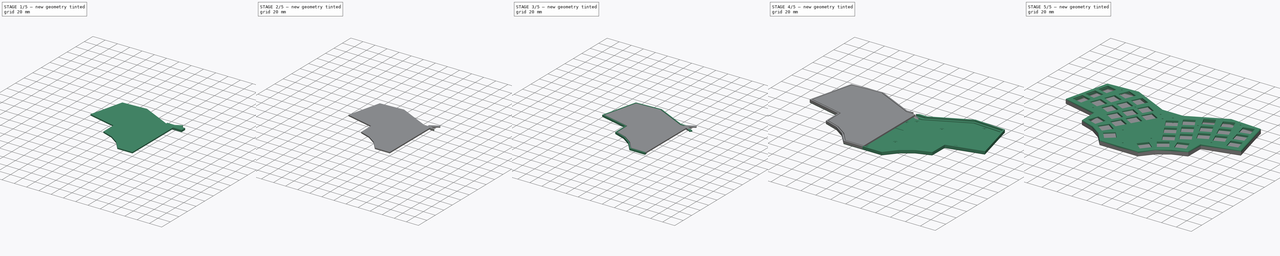
[diagram: build sequence overview — one tinted view per stage of 5, left to right]
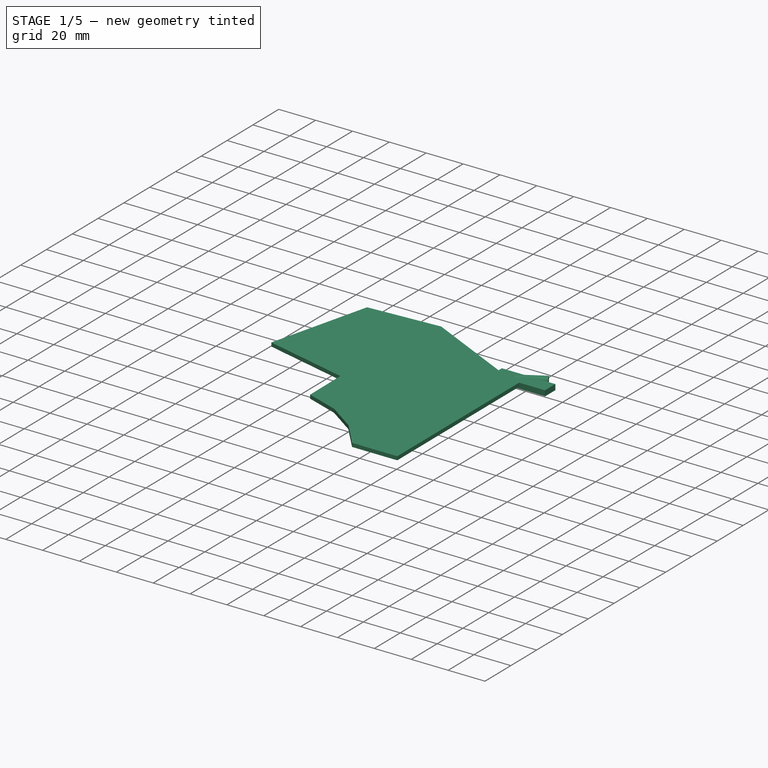
[diagram: stage 1 of 5 — iso view after this stage's code; geometry added in this stage tinted green]
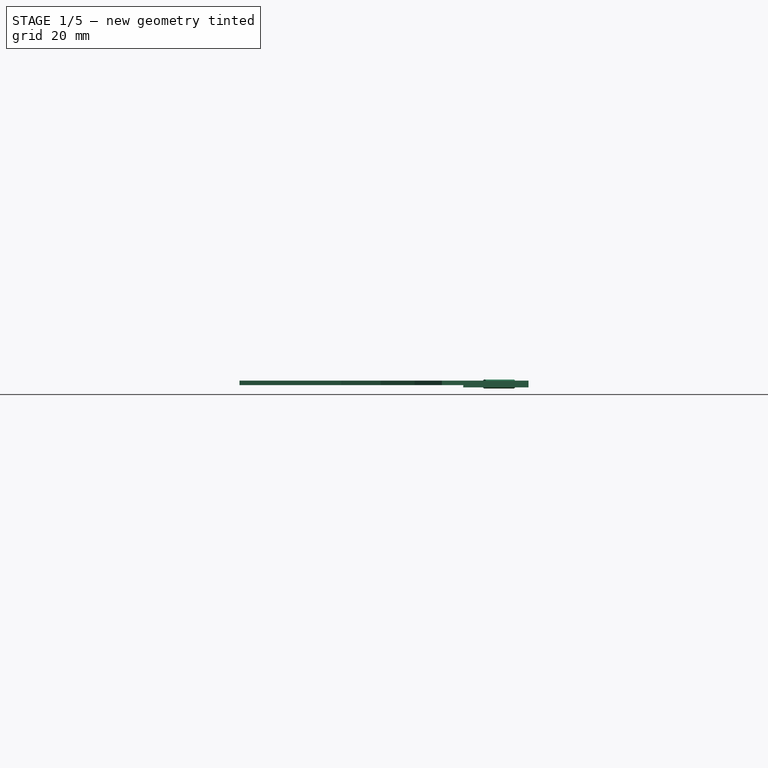
[diagram: stage 1 of 5 — front view after this stage's code; geometry added in this stage tinted green]
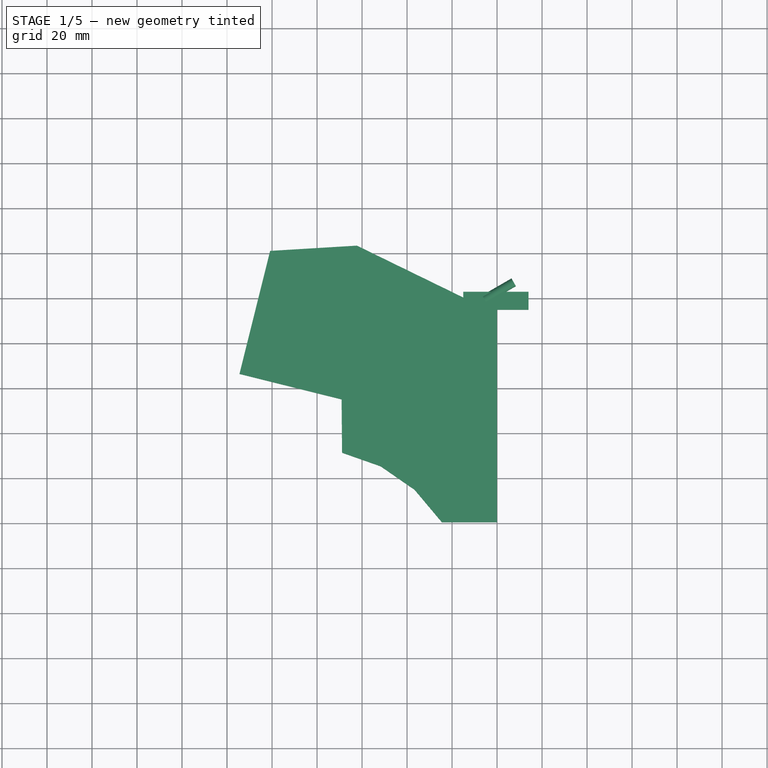
[diagram: stage 1 of 5 — top view after this stage's code; geometry added in this stage tinted green]
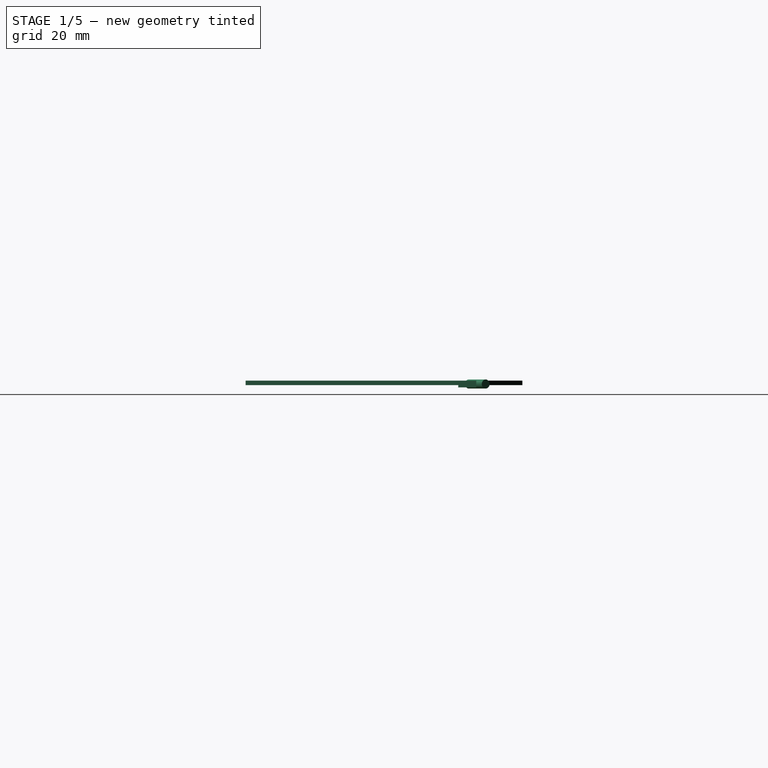
[diagram: stage 1 of 5 — right view after this stage's code; geometry added in this stage tinted green]
FCSTD DOCUMENT  (FreeCAD 0.18.4R)
Label: mbk1.2.1 swap
License: All rights reserved
LicenseURL: http://en.wikipedia.org/wiki/All_rights_reserved
objects: Sketcher::SketchObject×14, PartDesign::Pocket×11, PartDesign::Pad×8, PartDesign::Body×5, Part::MultiFuse×5, App::MeasureDistance×4, Part::Box×3, Part::Cut×3, Part::Cylinder×2, Part::MultiCommon×2, Part::Mirroring×2, Part::FeaturePython×2, PartDesign::Fillet×2, PartDesign::Chamfer×1
note: 79 computed .brp shape members not serialized (recipe doc carries the construction recipe); baked Part::Feature solids carry a one-line shape summary decoded from their .brp

FEATURE [Sketcher::SketchObject] Sketch001  label="pro micro sketch"
  AttachmentOffset = pos=(0,-10,0) rot=(0,0,1;0rad)
  MapMode = 5
  Placement = pos=(0,-10,0) rot=(0,0,1;0rad)
  Support = -> [XY_Plane003]
  sketch-geometry (6):
    g0: LineSegment StartX=-9 StartY=16.75 StartZ=0 EndX=9 EndY=16.75 EndZ=0
    g1: LineSegment StartX=9 StartY=16.75 StartZ=0 EndX=9 EndY=-16.75 EndZ=0
    g2: LineSegment StartX=9 StartY=-16.75 StartZ=0 EndX=-9 EndY=-16.75 EndZ=0
    g3: LineSegment StartX=-9 StartY=-16.75 StartZ=0 EndX=-9 EndY=16.75 EndZ=0
    g4: LineSegment [constr] StartX=-9 StartY=16.75 StartZ=0 EndX=0 EndY=0 EndZ=0
    g5: LineSegment [constr] StartX=0 StartY=0 StartZ=0 EndX=9 EndY=-16.75 EndZ=0
  constraints (16):
    c: Coincident(g0,g1)
    c: Coincident(g1,g2)
    c: Coincident(g2,g3)
    c: Coincident(g3,g0)
    c: Horizontal(g0)
    c: Horizontal(g2)
    c: Vertical(g1)
    c: Vertical(g3)
    c: Distance(g0) = 18
    c: Coincident(g4,g0)
    c: Coincident(g4,g-1)
    c: Coincident(g5,g-1)
    c: Coincident(g5,g1)
    c: Equal(g5,g4)
    c: Distance(g1) = 33.5
    c: Parallel(g4,g5)
FEATURE [Sketcher::SketchObject] Sketch  label="left holes"
  ExternalGeometry = -> [Sketch001]
  MapMode = 2
  Support = -> [Sketch]
  sketch-geometry (207):
    g0: LineSegment StartX=-98.39 StartY=78.1926 StartZ=0 EndX=-84.9999 EndY=74.854 EndZ=0
    g1: LineSegment StartX=-84.9999 StartY=74.854 StartZ=0 EndX=-88.3384 EndY=61.464 EndZ=0
    g2: LineSegment StartX=-88.3384 StartY=61.464 StartZ=0 EndX=-101.729 EndY=64.8025 EndZ=0
    g3: LineSegment StartX=-101.729 StartY=64.8025 StartZ=0 EndX=-98.39 EndY=78.1926 EndZ=0
    g4: LineSegment [constr] StartX=-99.8832 StartY=80.6776 StartZ=0 EndX=-82.5149 EndY=76.3472 EndZ=0
    g5: LineSegment [constr] StartX=-82.5149 StartY=76.3472 StartZ=0 EndX=-86.8453 EndY=58.9789 EndZ=0
    g6: LineSegment [constr] StartX=-86.8453 StartY=58.9789 StartZ=0 EndX=-104.214 EndY=63.3093 EndZ=0
    g7: LineSegment [constr] StartX=-104.214 StartY=63.3093 StartZ=0 EndX=-99.8832 EndY=80.6776 EndZ=0
    g8: LineSegment [constr] StartX=-98.39 StartY=78.1926 StartZ=0 EndX=-99.8832 EndY=80.6776 EndZ=0
    g9: LineSegment [constr] StartX=-88.3384 StartY=61.464 StartZ=0 EndX=-86.8453 EndY=58.9789 EndZ=0
    g10: LineSegment [constr] StartX=-84.9999 StartY=74.854 StartZ=0 EndX=-82.5149 EndY=76.3472 EndZ=0
    g11: LineSegment StartX=-71.2213 StartY=79.8399 StartZ=0 EndX=-58.4261 EndY=74.6704 EndZ=0
    g12: LineSegment StartX=-58.4261 StartY=74.6704 StartZ=0 EndX=-63.5957 EndY=61.8752 EndZ=0
    g13: LineSegment StartX=-63.5957 StartY=61.8752 StartZ=0 EndX=-76.3908 EndY=67.0448 EndZ=0
    g14: LineSegment StartX=-76.3908 StartY=67.0448 StartZ=0 EndX=-71.2213 EndY=79.8399 EndZ=0
    g15: LineSegment [constr] StartX=-72.354 StartY=82.5086 StartZ=0 EndX=-55.7575 EndY=75.8031 EndZ=0
    g16: LineSegment [constr] StartX=-55.7575 StartY=75.8031 StartZ=0 EndX=-62.4629 EndY=59.2066 EndZ=0
    g17: LineSegment [constr] StartX=-62.4629 StartY=59.2066 StartZ=0 EndX=-79.0595 EndY=65.912 EndZ=0
    g18: LineSegment [constr] StartX=-79.0595 StartY=65.912 StartZ=0 EndX=-72.354 EndY=82.5086 EndZ=0
    g19: LineSegment [constr] StartX=-71.2213 StartY=79.8399 StartZ=0 EndX=-72.354 EndY=82.5086 EndZ=0
    g20: LineSegment [constr] StartX=-63.5957 StartY=61.8752 StartZ=0 EndX=-62.4629 EndY=59.2066 EndZ=0
    g21: LineSegment [constr] StartX=-58.4261 StartY=74.6704 StartZ=0 EndX=-55.7575 EndY=75.8031 EndZ=0
    g22: LineSegment StartX=-49.5933 StartY=73.8537 StartZ=0 EndX=-37.1899 EndY=67.8041 EndZ=0
    g23: LineSegment StartX=-37.1899 StartY=67.8041 StartZ=0 EndX=-43.2395 EndY=55.4008 EndZ=0
    g24: LineSegment StartX=-43.2395 StartY=55.4008 StartZ=0 EndX=-55.6428 EndY=61.4503 EndZ=0
    g25: LineSegment StartX=-55.6428 StartY=61.4503 StartZ=0 EndX=-49.5933 EndY=73.8537 EndZ=0
    g26: LineSegment [constr] StartX=-50.5372 StartY=76.5948 StartZ=0 EndX=-34.4488 EndY=68.748 EndZ=0
    g27: LineSegment [constr] StartX=-34.4488 StartY=68.748 StartZ=0 EndX=-42.2956 EndY=52.6596 EndZ=0
    g28: LineSegment [constr] StartX=-42.2956 StartY=52.6596 StartZ=0 EndX=-58.384 EndY=60.5064 EndZ=0
    g29: LineSegment [constr] StartX=-58.384 StartY=60.5064 StartZ=0 EndX=-50.5372 EndY=76.5948 EndZ=0
    g30: LineSegment [constr] StartX=-49.5933 StartY=73.8537 StartZ=0 EndX=-50.5372 EndY=76.5948 EndZ=0
    g31: LineSegment [constr] StartX=-43.2395 StartY=55.4008 StartZ=0 EndX=-42.2956 EndY=52.6596 EndZ=0
    g32: LineSegment [constr] StartX=-37.1899 StartY=67.8041 StartZ=0 EndX=-34.4488 EndY=68.748 EndZ=0
    g33: LineSegment StartX=-31.6096 StartY=60.4785 StartZ=0 EndX=-19.6584 EndY=53.5785 EndZ=0
    g34: LineSegment StartX=-19.6584 StartY=53.5785 StartZ=0 EndX=-26.5584 EndY=41.6273 EndZ=0
    g35: LineSegment StartX=-26.5584 StartY=41.6273 StartZ=0 EndX=-38.5096 EndY=48.5273 EndZ=0
    g36: LineSegment StartX=-38.5096 StartY=48.5273 StartZ=0 EndX=-31.6096 EndY=60.4785 EndZ=0
    g37: LineSegment [constr] StartX=-32.3599 StartY=63.2788 StartZ=0 EndX=-16.8581 EndY=54.3288 EndZ=0
    g38: LineSegment [constr] StartX=-16.8581 StartY=54.3288 StartZ=0 EndX=-25.8081 EndY=38.827 EndZ=0
    g39: LineSegment [constr] StartX=-25.8081 StartY=38.827 StartZ=0 EndX=-41.3099 EndY=47.777 EndZ=0
    g40: LineSegment [constr] StartX=-41.3099 StartY=47.777 StartZ=0 EndX=-32.3599 EndY=63.2788 EndZ=0
    g41: LineSegment [constr] StartX=-31.6096 StartY=60.4785 StartZ=0 EndX=-32.3599 EndY=63.2788 EndZ=0
    g42: LineSegment [constr] StartX=-26.5584 StartY=41.6273 StartZ=0 EndX=-25.8081 EndY=38.827 EndZ=0
    g43: LineSegment [constr] StartX=-19.6584 StartY=53.5785 StartZ=0 EndX=-16.8581 EndY=54.3288 EndZ=0
    g44: LineSegment StartX=-17.5015 StartY=47.7144 StartZ=0 EndX=-5.55035 EndY=40.8144 EndZ=0
    g45: LineSegment StartX=-5.55035 StartY=40.8144 StartZ=0 EndX=-12.4504 EndY=28.8632 EndZ=0
    g46: LineSegment StartX=-12.4504 StartY=28.8632 StartZ=0 EndX=-24.4015 EndY=35.7632 EndZ=0
    g47: LineSegment StartX=-24.4015 StartY=35.7632 StartZ=0 EndX=-17.5015 EndY=47.7144 EndZ=0
    g48: LineSegment [constr] StartX=-18.2519 StartY=50.5147 StartZ=0 EndX=-2.75 EndY=41.5647 EndZ=0
    g49: LineSegment [constr] StartX=-2.75 StartY=41.5647 StartZ=0 EndX=-11.7 EndY=26.0629 EndZ=0
    g50: LineSegment [constr] StartX=-11.7 StartY=26.0629 StartZ=0 EndX=-27.2019 EndY=35.0129 EndZ=0
    g51: LineSegment [constr] StartX=-27.2019 StartY=35.0129 StartZ=0 EndX=-18.2519 EndY=50.5147 EndZ=0
    g52: LineSegment [constr] StartX=-17.5015 StartY=47.7144 StartZ=0 EndX=-18.2519 EndY=50.5147 EndZ=0
    g53: LineSegment [constr] StartX=-12.4504 StartY=28.8632 StartZ=0 EndX=-11.7 EndY=26.0629 EndZ=0
    g54: LineSegment [constr] StartX=-5.55035 StartY=40.8144 StartZ=0 EndX=-2.75 EndY=41.5647 EndZ=0
    g55: LineSegment StartX=-102.89 StartY=60.1451 StartZ=0 EndX=-89.4997 EndY=56.8065 EndZ=0
    g56: LineSegment StartX=-89.4997 StartY=56.8065 StartZ=0 EndX=-92.8382 EndY=43.4165 EndZ=0
    g57: LineSegment StartX=-92.8382 StartY=43.4165 StartZ=0 EndX=-106.228 EndY=46.755 EndZ=0
    g58: LineSegment StartX=-106.228 StartY=46.755 StartZ=0 EndX=-102.89 EndY=60.1451 EndZ=0
    g59: LineSegment [constr] StartX=-104.383 StartY=62.6301 StartZ=0 EndX=-87.0146 EndY=58.2997 EndZ=0
    g60: LineSegment [constr] StartX=-87.0146 StartY=58.2997 StartZ=0 EndX=-91.345 EndY=40.9314 EndZ=0
    g61: LineSegment [constr] StartX=-91.345 StartY=40.9314 StartZ=0 EndX=-108.713 EndY=45.2618 EndZ=0
    g62: LineSegment [constr] StartX=-108.713 StartY=45.2618 StartZ=0 EndX=-104.383 EndY=62.6301 EndZ=0
    g63: LineSegment [constr] StartX=-102.89 StartY=60.1451 StartZ=0 EndX=-104.383 EndY=62.6301 EndZ=0
    g64: LineSegment [constr] StartX=-92.8382 StartY=43.4165 StartZ=0 EndX=-91.345 EndY=40.9314 EndZ=0
    g65: LineSegment [constr] StartX=-89.4997 StartY=56.8065 StartZ=0 EndX=-87.0146 EndY=58.2997 EndZ=0
    g66: LineSegment StartX=-78.1889 StartY=62.5943 StartZ=0 EndX=-65.3938 EndY=57.4247 EndZ=0
    g67: LineSegment StartX=-65.3938 StartY=57.4247 StartZ=0 EndX=-70.5634 EndY=44.6296 EndZ=0
    g68: LineSegment StartX=-70.5634 StartY=44.6296 StartZ=0 EndX=-83.3585 EndY=49.7992 EndZ=0
    g69: LineSegment StartX=-83.3585 StartY=49.7992 StartZ=0 EndX=-78.1889 EndY=62.5943 EndZ=0
    g70: LineSegment [constr] StartX=-79.3217 StartY=65.263 StartZ=0 EndX=-62.7251 EndY=58.5575 EndZ=0
    g71: LineSegment [constr] StartX=-62.7251 StartY=58.5575 StartZ=0 EndX=-69.4306 EndY=41.9609 EndZ=0
    g72: LineSegment [constr] StartX=-69.4306 StartY=41.9609 StartZ=0 EndX=-86.0272 EndY=48.6664 EndZ=0
    g73: LineSegment [constr] StartX=-86.0272 StartY=48.6664 StartZ=0 EndX=-79.3217 EndY=65.263 EndZ=0
    g74: LineSegment [constr] StartX=-78.1889 StartY=62.5943 StartZ=0 EndX=-79.3217 EndY=65.263 EndZ=0
    g75: LineSegment [constr] StartX=-70.5634 StartY=44.6296 StartZ=0 EndX=-69.4306 EndY=41.9609 EndZ=0
    g76: LineSegment [constr] StartX=-65.3938 StartY=57.4247 StartZ=0 EndX=-62.7251 EndY=58.5575 EndZ=0
    g77: LineSegment StartX=-57.747 StartY=57.1361 StartZ=0 EndX=-45.3437 EndY=51.0866 EndZ=0
    g78: LineSegment StartX=-45.3437 StartY=51.0866 StartZ=0 EndX=-51.3932 EndY=38.6832 EndZ=0
    g79: LineSegment StartX=-51.3932 StartY=38.6832 StartZ=0 EndX=-63.7965 EndY=44.7327 EndZ=0
    g80: LineSegment StartX=-63.7965 StartY=44.7327 StartZ=0 EndX=-57.747 EndY=57.1361 EndZ=0
    g81: LineSegment [constr] StartX=-58.6909 StartY=59.8773 StartZ=0 EndX=-42.6025 EndY=52.0304 EndZ=0
    g82: LineSegment [constr] StartX=-42.6025 StartY=52.0304 StartZ=0 EndX=-50.4493 EndY=35.942 EndZ=0
    g83: LineSegment [constr] StartX=-50.4493 StartY=35.942 StartZ=0 EndX=-66.5377 EndY=43.7889 EndZ=0
    g84: LineSegment [constr] StartX=-66.5377 StartY=43.7889 StartZ=0 EndX=-58.6909 EndY=59.8773 EndZ=0
    g85: LineSegment [constr] StartX=-57.747 StartY=57.1361 StartZ=0 EndX=-58.6909 EndY=59.8773 EndZ=0
    g86: LineSegment [constr] StartX=-51.3932 StartY=38.6832 StartZ=0 EndX=-50.4493 EndY=35.942 EndZ=0
    g87: LineSegment [constr] StartX=-45.3437 StartY=51.0866 StartZ=0 EndX=-42.6025 EndY=52.0304 EndZ=0
    g88: LineSegment StartX=-40.9096 StartY=44.3704 StartZ=0 EndX=-28.9584 EndY=37.4704 EndZ=0
    g89: LineSegment StartX=-28.9584 StartY=37.4704 StartZ=0 EndX=-35.8584 EndY=25.5192 EndZ=0
    g90: LineSegment StartX=-35.8584 StartY=25.5192 StartZ=0 EndX=-47.8096 EndY=32.4192 EndZ=0
    g91: LineSegment StartX=-47.8096 StartY=32.4192 StartZ=0 EndX=-40.9096 EndY=44.3704 EndZ=0
    g92: LineSegment [constr] StartX=-41.6599 StartY=47.1707 StartZ=0 EndX=-26.1581 EndY=38.2207 EndZ=0
    g93: LineSegment [constr] StartX=-26.1581 StartY=38.2207 StartZ=0 EndX=-35.1081 EndY=22.7189 EndZ=0
    g94: LineSegment [constr] StartX=-35.1081 StartY=22.7189 StartZ=0 EndX=-50.6099 EndY=31.6689 EndZ=0
    g95: LineSegment [constr] StartX=-50.6099 StartY=31.6689 StartZ=0 EndX=-41.6599 EndY=47.1707 EndZ=0
    g96: LineSegment [constr] StartX=-40.9096 StartY=44.3704 StartZ=0 EndX=-41.6599 EndY=47.1707 EndZ=0
    g97: LineSegment [constr] StartX=-35.8584 StartY=25.5192 StartZ=0 EndX=-35.1081 EndY=22.7189 EndZ=0
    g98: LineSegment [constr] StartX=-28.9584 StartY=37.4704 StartZ=0 EndX=-26.1581 EndY=38.2207 EndZ=0
    g99: LineSegment StartX=-26.8015 StartY=31.6063 StartZ=0 EndX=-14.8504 EndY=24.7063 EndZ=0
    g100: LineSegment StartX=-14.8504 StartY=24.7063 StartZ=0 EndX=-21.7504 EndY=12.7551 EndZ=0
    g101: LineSegment StartX=-21.7504 StartY=12.7551 StartZ=0 EndX=-33.7015 EndY=19.6551 EndZ=0
    g102: LineSegment StartX=-33.7015 StartY=19.6551 StartZ=0 EndX=-26.8015 EndY=31.6063 EndZ=0
    g103: LineSegment [constr] StartX=-27.5519 StartY=34.4066 StartZ=0 EndX=-12.05 EndY=25.4566 EndZ=0
    g104: LineSegment [constr] StartX=-12.05 StartY=25.4566 StartZ=0 EndX=-21 EndY=9.95478 EndZ=0
    g105: LineSegment [constr] StartX=-21 StartY=9.95478 StartZ=0 EndX=-36.5019 EndY=18.9048 EndZ=0
    g106: LineSegment [constr] StartX=-36.5019 StartY=18.9048 StartZ=0 EndX=-27.5519 EndY=34.4066 EndZ=0
    g107: LineSegment [constr] StartX=-26.8015 StartY=31.6063 StartZ=0 EndX=-27.5519 EndY=34.4066 EndZ=0
    g108: LineSegment [constr] StartX=-21.7504 StartY=12.7551 StartZ=0 EndX=-21 EndY=9.95478 EndZ=0
    g109: LineSegment [constr] StartX=-14.8504 StartY=24.7063 StartZ=0 EndX=-12.05 EndY=25.4566 EndZ=0
    g110: LineSegment StartX=-107.39 StartY=42.0976 StartZ=0 EndX=-93.9994 EndY=38.759 EndZ=0
    g111: LineSegment StartX=-93.9994 StartY=38.759 StartZ=0 EndX=-97.3379 EndY=25.369 EndZ=0
    g112: LineSegment StartX=-97.3379 StartY=25.369 StartZ=0 EndX=-110.728 EndY=28.7075 EndZ=0
    g113: LineSegment StartX=-110.728 StartY=28.7075 StartZ=0 EndX=-107.39 EndY=42.0976 EndZ=0
    g114: LineSegment [constr] StartX=-108.883 StartY=44.5826 StartZ=0 EndX=-91.5144 EndY=40.2522 EndZ=0
    g115: LineSegment [constr] StartX=-91.5144 StartY=40.2522 StartZ=0 EndX=-95.8448 EndY=22.8839 EndZ=0
    g116: LineSegment [constr] StartX=-95.8448 StartY=22.8839 StartZ=0 EndX=-113.213 EndY=27.2143 EndZ=0
    g117: LineSegment [constr] StartX=-113.213 StartY=27.2143 StartZ=0 EndX=-108.883 EndY=44.5826 EndZ=0
    g118: LineSegment [constr] StartX=-107.39 StartY=42.0976 StartZ=0 EndX=-108.883 EndY=44.5826 EndZ=0
    g119: LineSegment [constr] StartX=-97.3379 StartY=25.369 StartZ=0 EndX=-95.8448 EndY=22.8839 EndZ=0
    g120: LineSegment [constr] StartX=-93.9994 StartY=38.759 StartZ=0 EndX=-91.5144 EndY=40.2522 EndZ=0
    g121: LineSegment StartX=-85.1566 StartY=45.3487 StartZ=0 EndX=-72.3615 EndY=40.1791 EndZ=0
    g122: LineSegment StartX=-72.3615 StartY=40.1791 StartZ=0 EndX=-77.5311 EndY=27.384 EndZ=0
    g123: LineSegment StartX=-77.5311 StartY=27.384 StartZ=0 EndX=-90.3262 EndY=32.5536 EndZ=0
    g124: LineSegment StartX=-90.3262 StartY=32.5536 StartZ=0 EndX=-85.1566 EndY=45.3487 EndZ=0
    g125: LineSegment [constr] StartX=-86.2894 StartY=48.0174 StartZ=0 EndX=-69.6928 EndY=41.3119 EndZ=0
    g126: LineSegment [constr] StartX=-69.6928 StartY=41.3119 StartZ=0 EndX=-76.3983 EndY=24.7153 EndZ=0
    g127: LineSegment [constr] StartX=-76.3983 StartY=24.7153 StartZ=0 EndX=-92.9949 EndY=31.4208 EndZ=0
    g128: LineSegment [constr] StartX=-92.9949 StartY=31.4208 StartZ=0 EndX=-86.2894 EndY=48.0174 EndZ=0
    g129: LineSegment [constr] StartX=-85.1566 StartY=45.3487 StartZ=0 EndX=-86.2894 EndY=48.0174 EndZ=0
    g130: LineSegment [constr] StartX=-77.5311 StartY=27.384 StartZ=0 EndX=-76.3983 EndY=24.7153 EndZ=0
    g131: LineSegment [constr] StartX=-72.3615 StartY=40.1791 StartZ=0 EndX=-69.6928 EndY=41.3119 EndZ=0
    g132: LineSegment StartX=-65.9007 StartY=40.4185 StartZ=0 EndX=-53.4974 EndY=34.369 EndZ=0
    g133: LineSegment StartX=-53.4974 StartY=34.369 StartZ=0 EndX=-59.5469 EndY=21.9656 EndZ=0
    g134: LineSegment StartX=-59.5469 StartY=21.9656 StartZ=0 EndX=-71.9502 EndY=28.0152 EndZ=0
    g135: LineSegment StartX=-71.9502 StartY=28.0152 StartZ=0 EndX=-65.9007 EndY=40.4185 EndZ=0
    g136: LineSegment [constr] StartX=-66.8446 StartY=43.1597 StartZ=0 EndX=-50.7562 EndY=35.3129 EndZ=0
    g137: LineSegment [constr] StartX=-50.7562 StartY=35.3129 StartZ=0 EndX=-58.603 EndY=19.2245 EndZ=0
    g138: LineSegment [constr] StartX=-58.603 StartY=19.2245 StartZ=0 EndX=-74.6914 EndY=27.0713 EndZ=0
    g139: LineSegment [constr] StartX=-74.6914 StartY=27.0713 StartZ=0 EndX=-66.8446 EndY=43.1597 EndZ=0
    g140: LineSegment [constr] StartX=-65.9007 StartY=40.4185 StartZ=0 EndX=-66.8446 EndY=43.1597 EndZ=0
    g141: LineSegment [constr] StartX=-59.5469 StartY=21.9656 StartZ=0 EndX=-58.603 EndY=19.2245 EndZ=0
    g142: LineSegment [constr] StartX=-53.4974 StartY=34.369 StartZ=0 EndX=-50.7562 EndY=35.3129 EndZ=0
    g143: LineSegment StartX=-50.2096 StartY=28.2623 StartZ=0 EndX=-38.2584 EndY=21.3623 EndZ=0
    g144: LineSegment StartX=-38.2584 StartY=21.3623 StartZ=0 EndX=-45.1584 EndY=9.41116 EndZ=0
    g145: LineSegment StartX=-45.1584 StartY=9.41116 StartZ=0 EndX=-57.1096 EndY=16.3112 EndZ=0
    g146: LineSegment StartX=-57.1096 StartY=16.3112 StartZ=0 EndX=-50.2096 EndY=28.2623 EndZ=0
    g147: LineSegment [constr] StartX=-50.9599 StartY=31.0627 StartZ=0 EndX=-35.4581 EndY=22.1127 EndZ=0
    g148: LineSegment [constr] StartX=-35.4581 StartY=22.1127 StartZ=0 EndX=-44.4081 EndY=6.61081 EndZ=0
    g149: LineSegment [constr] StartX=-44.4081 StartY=6.61081 StartZ=0 EndX=-59.9099 EndY=15.5608 EndZ=0
    g150: LineSegment [constr] StartX=-59.9099 StartY=15.5608 StartZ=0 EndX=-50.9599 EndY=31.0627 EndZ=0
    g151: LineSegment [constr] StartX=-50.2096 StartY=28.2623 StartZ=0 EndX=-50.9599 EndY=31.0627 EndZ=0
    g152: LineSegment [constr] StartX=-45.1584 StartY=9.41116 StartZ=0 EndX=-44.4081 EndY=6.61081 EndZ=0
    g153: LineSegment [constr] StartX=-38.2584 StartY=21.3623 StartZ=0 EndX=-35.4581 EndY=22.1127 EndZ=0
    g154: LineSegment StartX=-36.1015 StartY=15.4982 StartZ=0 EndX=-24.1504 EndY=8.59821 EndZ=0
    g155: LineSegment StartX=-24.1504 StartY=8.59821 StartZ=0 EndX=-31.0504 EndY=-3.35294 EndZ=0
    g156: LineSegment StartX=-31.0504 StartY=-3.35294 StartZ=0 EndX=-43.0015 EndY=3.54706 EndZ=0
    g157: LineSegment StartX=-43.0015 StartY=3.54706 StartZ=0 EndX=-36.1015 EndY=15.4982 EndZ=0
    g158: LineSegment [constr] StartX=-36.8519 StartY=18.2986 StartZ=0 EndX=-21.35 EndY=9.34856 EndZ=0
    g159: LineSegment [constr] StartX=-21.35 StartY=9.34856 StartZ=0 EndX=-30.3 EndY=-6.15329 EndZ=0
    g160: LineSegment [constr] StartX=-30.3 StartY=-6.15329 StartZ=0 EndX=-45.8019 EndY=2.79671 EndZ=0
    g161: LineSegment [constr] StartX=-45.8019 StartY=2.79671 StartZ=0 EndX=-36.8519 EndY=18.2986 EndZ=0
    g162: LineSegment [constr] StartX=-36.1015 StartY=15.4982 StartZ=0 EndX=-36.8519 EndY=18.2986 EndZ=0
    g163: LineSegment [constr] StartX=-31.0504 StartY=-3.35294 StartZ=0 EndX=-30.3 EndY=-6.15329 EndZ=0
    g164: LineSegment [constr] StartX=-24.1504 StartY=8.59821 StartZ=0 EndX=-21.35 EndY=9.34856 EndZ=0
    g165: LineSegment [constr] StartX=-52.7828 StartY=-10.9666 StartZ=0 EndX=-51.5316 EndY=-13.5818 EndZ=0
    g166: LineSegment StartX=-61.2057 StartY=6.63836 StartZ=0 EndX=-48.1918 EndY=2.04735 EndZ=0
    g167: LineSegment StartX=-48.1918 StartY=2.04735 StartZ=0 EndX=-52.7828 EndY=-10.9666 EndZ=0
    g168: LineSegment StartX=-52.7828 StartY=-10.9666 StartZ=0 EndX=-65.7967 EndY=-6.37558 EndZ=0
    g169: LineSegment StartX=-65.7967 StartY=-6.37558 StartZ=0 EndX=-61.2057 EndY=6.63836 EndZ=0
    g170: LineSegment [constr] StartX=-62.4569 StartY=9.25359 StartZ=0 EndX=-45.5765 EndY=3.29859 EndZ=0
    g171: LineSegment [constr] StartX=-45.5765 StartY=3.29859 StartZ=0 EndX=-51.5316 EndY=-13.5818 EndZ=0
    g172: LineSegment [constr] StartX=-51.5316 StartY=-13.5818 StartZ=0 EndX=-68.412 EndY=-7.62681 EndZ=0
    g173: LineSegment [constr] StartX=-68.412 StartY=-7.62681 StartZ=0 EndX=-62.4569 EndY=9.25359 EndZ=0
    g174: LineSegment [constr] StartX=-61.2057 StartY=6.63836 StartZ=0 EndX=-62.4569 EndY=9.25359 EndZ=0
    g175: LineSegment [constr] StartX=-48.1918 StartY=2.04735 StartZ=0 EndX=-45.5765 EndY=3.29859 EndZ=0
    g176: LineSegment [constr] StartX=-36.7097 StartY=-21.237 StartZ=0 EndX=-36.1911 EndY=-24.0894 EndZ=0
    g177: LineSegment StartX=-40.2005 StartY=-2.03563 StartZ=0 EndX=-28.8544 EndY=-9.89092 EndZ=0
    g178: LineSegment StartX=-28.8544 StartY=-9.89092 StartZ=0 EndX=-36.7097 EndY=-21.237 EndZ=0
    g179: LineSegment StartX=-36.7097 StartY=-21.237 StartZ=0 EndX=-48.0558 EndY=-13.3817 EndZ=0
    g180: LineSegment StartX=-48.0558 StartY=-13.3817 StartZ=0 EndX=-40.2005 EndY=-2.03563 EndZ=0
    g181: LineSegment [constr] StartX=-40.7191 StartY=0.816758 StartZ=0 EndX=-26.002 EndY=-9.37236 EndZ=0
    g182: LineSegment [constr] StartX=-26.002 StartY=-9.37236 StartZ=0 EndX=-36.1911 EndY=-24.0894 EndZ=0
    g183: LineSegment [constr] StartX=-36.1911 StartY=-24.0894 StartZ=0 EndX=-50.9082 EndY=-13.9003 EndZ=0
    g184: LineSegment [constr] StartX=-50.9082 StartY=-13.9003 StartZ=0 EndX=-40.7191 EndY=0.816758 EndZ=0
    g185: LineSegment [constr] StartX=-40.2005 StartY=-2.03563 StartZ=0 EndX=-40.7191 EndY=0.816758 EndZ=0
    g186: LineSegment [constr] StartX=-28.8544 StartY=-9.89092 StartZ=0 EndX=-26.002 EndY=-9.37236 EndZ=0
    g187: LineSegment [constr] StartX=-23.9076 StartY=-35.3768 StartZ=0 EndX=-24.1583 EndY=-38.2651 EndZ=0
    g188: LineSegment StartX=-22.22 StartY=-15.9338 StartZ=0 EndX=-13.3423 EndY=-26.4991 EndZ=0
    g189: LineSegment StartX=-13.3423 StartY=-26.4991 StartZ=0 EndX=-23.9076 EndY=-35.3768 EndZ=0
    g190: LineSegment StartX=-23.9076 StartY=-35.3768 StartZ=0 EndX=-32.7854 EndY=-24.8115 EndZ=0
    g191: LineSegment StartX=-32.7854 StartY=-24.8115 StartZ=0 EndX=-22.22 EndY=-15.9338 EndZ=0
    g192: LineSegment [constr] StartX=-21.9693 StartY=-13.0455 StartZ=0 EndX=-10.454 EndY=-26.7498 EndZ=0
    g193: LineSegment [constr] StartX=-10.454 StartY=-26.7498 StartZ=0 EndX=-24.1583 EndY=-38.2651 EndZ=0
    g194: LineSegment [constr] StartX=-24.1583 StartY=-38.2651 StartZ=0 EndX=-35.6736 EndY=-24.5608 EndZ=0
    g195: LineSegment [constr] StartX=-35.6736 StartY=-24.5608 StartZ=0 EndX=-21.9693 EndY=-13.0455 EndZ=0
    g196: LineSegment [constr] StartX=-22.22 StartY=-15.9338 StartZ=0 EndX=-21.9693 EndY=-13.0455 EndZ=0
    g197: LineSegment [constr] StartX=-13.3423 StartY=-26.4991 StartZ=0 EndX=-10.454 EndY=-26.7498 EndZ=0
    g198: Circle [constr] CenterX=-83.0684 CenterY=-76.0753 CenterZ=0 NormalX=0 NormalY=0 NormalZ=1 AngleXU=0 Radius=70
    g199: GeomPoint X=-68.412 Y=-7.62681 Z=0
    g200: GeomPoint X=-68.412 Y=-7.62681 Z=0
    g201: LineSegment [constr] StartX=-104.319 StartY=-70.3812 StartZ=0 EndX=-30.3 EndY=-6.15329 EndZ=0
    g202: LineSegment [constr] StartX=-104.319 StartY=-70.3812 StartZ=0 EndX=-83.0684 EndY=-76.0753 EndZ=0
    g203: LineSegment [constr] StartX=-113.213 StartY=27.2143 StartZ=0 EndX=-104.319 EndY=-70.3812 EndZ=0
    g204: LineSegment [constr] StartX=-83.0684 StartY=-76.0753 StartZ=0 EndX=-83.0684 EndY=-6.07525 EndZ=0
    g205: LineSegment [constr] StartX=-45.5765 StartY=3.29859 StartZ=0 EndX=-44.4081 EndY=6.61081 EndZ=0
    g206: LineSegment [constr] StartX=-44.4081 StartY=6.61081 StartZ=0 EndX=-51.5316 EndY=-13.5818 EndZ=0
  constraints (564):
    c: Coincident(g0,g1)
    c: Coincident(g1,g2)
    c: Coincident(g2,g3)
    c: Coincident(g3,g0)
    c: Distance(g0) = 13.8
    c: Equal(g0,g3)
    c: Coincident(g4,g5)
    c: Coincident(g5,g6)
    c: Coincident(g6,g7)
    c: Coincident(g7,g4)
    c: Distance(g4) = 17.9
    c: Equal(g5,g4)
    c: Coincident(g8,g0)
    c: Coincident(g8,g4)
    c: Coincident(g9,g1)
    c: Coincident(g9,g5)
    c: Equal(g9,g8)
    c: Coincident(g10,g0)
    c: Coincident(g10,g4)
    c: Equal(g10,g9)
    c: Coincident(g11,g12)
    c: Coincident(g12,g13)
    c: Coincident(g13,g14)
    c: Coincident(g14,g11)
    c: Equal(g0,g11) = 13.8
    c: Equal(g11,g14)
    c: Coincident(g15,g16)
    c: Coincident(g16,g17)
    c: Coincident(g17,g18)
    c: Coincident(g18,g15)
    c: Equal(g4,g15) = 17.9
    c: Equal(g16,g15)
    c: Coincident(g19,g11)
    c: Coincident(g19,g15)
    c: Coincident(g20,g12)
    c: Coincident(g20,g16)
    c: Equal(g20,g19)
    c: Coincident(g21,g11)
    c: Coincident(g21,g15)
    c: Equal(g21,g20)
    c: Coincident(g22,g23)
    c: Coincident(g23,g24)
    c: Coincident(g24,g25)
    c: Coincident(g25,g22)
    c: Equal(g0,g22) = 13.8
    c: Equal(g22,g25)
    c: Coincident(g26,g27)
    c: Coincident(g27,g28)
    c: Coincident(g28,g29)
    c: Coincident(g29,g26)
    c: Equal(g4,g26) = 17.9
    c: Equal(g27,g26)
    c: Coincident(g30,g22)
    c: Coincident(g30,g26)
    c: Coincident(g31,g23)
    c: Coincident(g31,g27)
    c: Equal(g31,g30)
    c: Coincident(g32,g22)
    c: Coincident(g32,g26)
    c: Equal(g32,g31)
    c: Coincident(g33,g34)
    c: Coincident(g34,g35)
    c: Coincident(g35,g36)
    c: Coincident(g36,g33)
    c: Equal(g0,g33) = 13.8
    c: Equal(g33,g36)
    c: Coincident(g37,g38)
    c: Coincident(g38,g39)
    c: Coincident(g39,g40)
    c: Coincident(g40,g37)
    c: Equal(g4,g37) = 17.9
    c: Equal(g38,g37)
    c: Coincident(g41,g33)
    c: Coincident(g41,g37)
    c: Coincident(g42,g34)
    c: Coincident(g42,g38)
    c: Equal(g42,g41)
    c: Coincident(g43,g33)
    c: Coincident(g43,g37)
    c: Equal(g43,g42)
    c: Coincident(g44,g45)
    c: Coincident(g45,g46)
    c: Coincident(g46,g47)
    c: Coincident(g47,g44)
    c: Equal(g0,g44) = 13.8
    c: Equal(g44,g47)
    c: Coincident(g48,g49)
    c: Coincident(g49,g50)
    c: Coincident(g50,g51)
    c: Coincident(g51,g48)
    c: Equal(g4,g48) = 17.9
    c: Equal(g49,g48)
    c: Coincident(g52,g44)
    c: Coincident(g52,g48)
    c: Coincident(g53,g45)
    c: Coincident(g53,g49)
    c: Equal(g53,g52)
    c: Coincident(g54,g44)
    c: Coincident(g54,g48)
    c: Equal(g54,g53)
    c: Coincident(g55,g56)
    c: Coincident(g56,g57)
    c: Coincident(g57,g58)
    c: Coincident(g58,g55)
    c: Equal(g0,g55) = 13.8
    c: Equal(g55,g58)
    c: Coincident(g59,g60)
    c: Coincident(g60,g61)
    c: Coincident(g61,g62)
    c: Coincident(g62,g59)
    c: Equal(g4,g59) = 17.9
    c: Equal(g60,g59)
    c: Coincident(g63,g55)
    c: Coincident(g63,g59)
    c: Coincident(g64,g56)
    c: Coincident(g64,g60)
    c: Equal(g64,g63)
    c: Coincident(g65,g55)
    c: Coincident(g65,g59)
    c: Equal(g65,g64)
    c: Coincident(g66,g67)
    c: Coincident(g67,g68)
    c: Coincident(g68,g69)
    c: Coincident(g69,g66)
    c: Equal(g55,g66) = 13.8
    c: Equal(g66,g69)
    c: Coincident(g70,g71)
    c: Coincident(g71,g72)
    c: Coincident(g72,g73)
    c: Coincident(g73,g70)
    c: Equal(g59,g70) = 17.9
    c: Equal(g71,g70)
    c: Coincident(g74,g66)
    c: Coincident(g74,g70)
    c: Coincident(g75,g67)
    c: Coincident(g75,g71)
    c: Equal(g75,g74)
    c: Coincident(g76,g66)
    c: Coincident(g76,g70)
    c: Equal(g76,g75)
    c: Coincident(g77,g78)
    c: Coincident(g78,g79)
    c: Coincident(g79,g80)
    c: Coincident(g80,g77)
    c: Equal(g55,g77) = 13.8
    c: Equal(g77,g80)
    c: Coincident(g81,g82)
    c: Coincident(g82,g83)
    c: Coincident(g83,g84)
    c: Coincident(g84,g81)
    c: Equal(g59,g81) = 17.9
    c: Equal(g82,g81)
    c: Coincident(g85,g77)
    c: Coincident(g85,g81)
    c: Coincident(g86,g78)
    c: Coincident(g86,g82)
    c: Equal(g86,g85)
    c: Coincident(g87,g77)
    c: Coincident(g87,g81)
    c: Equal(g87,g86)
    c: Coincident(g88,g89)
    c: Coincident(g89,g90)
    c: Coincident(g90,g91)
    c: Coincident(g91,g88)
    c: Equal(g55,g88) = 13.8
    c: Equal(g88,g91)
    c: Coincident(g92,g93)
    c: Coincident(g93,g94)
    c: Coincident(g94,g95)
    c: Coincident(g95,g92)
    c: Equal(g59,g92) = 17.9
    c: Equal(g93,g92)
    c: Coincident(g96,g88)
    c: Coincident(g96,g92)
    c: Coincident(g97,g89)
    c: Coincident(g97,g93)
    c: Equal(g97,g96)
    c: Coincident(g98,g88)
    c: Coincident(g98,g92)
    c: Equal(g98,g97)
    c: Coincident(g99,g100)
    c: Coincident(g100,g101)
    c: Coincident(g101,g102)
    c: Coincident(g102,g99)
    c: Equal(g55,g99) = 13.8
    c: Equal(g99,g102)
    c: Coincident(g103,g104)
    c: Coincident(g104,g105)
    c: Coincident(g105,g106)
    c: Coincident(g106,g103)
    c: Equal(g59,g103) = 17.9
    c: Equal(g104,g103)
    c: Coincident(g107,g99)
    c: Coincident(g107,g103)
    c: Coincident(g108,g100)
    c: Coincident(g108,g104)
    c: Equal(g108,g107)
    c: Coincident(g109,g99)
    c: Coincident(g109,g103)
    c: Equal(g109,g108)
    c: Coincident(g110,g111)
    c: Coincident(g111,g112)
    c: Coincident(g112,g113)
    c: Coincident(g113,g110)
    c: Equal(g0,g110) = 13.8
    c: Equal(g110,g113)
    c: Coincident(g114,g115)
    c: Coincident(g115,g116)
    c: Coincident(g116,g117)
    c: Coincident(g117,g114)
    c: Equal(g4,g114) = 17.9
    c: Equal(g115,g114)
    c: Coincident(g118,g110)
    c: Coincident(g118,g114)
    c: Coincident(g119,g111)
    c: Coincident(g119,g115)
    c: Equal(g119,g118)
    c: Coincident(g120,g110)
    c: Coincident(g120,g114)
    c: Equal(g120,g119)
    c: Coincident(g121,g122)
    c: Coincident(g122,g123)
    c: Coincident(g123,g124)
    c: Coincident(g124,g121)
    c: Equal(g110,g121) = 13.8
    c: Equal(g121,g124)
    c: Coincident(g125,g126)
    c: Coincident(g126,g127)
    c: Coincident(g127,g128)
    c: Coincident(g128,g125)
    c: Equal(g114,g125) = 17.9
    c: Equal(g126,g125)
    c: Coincident(g129,g121)
    c: Coincident(g129,g125)
    c: Coincident(g130,g122)
    c: Coincident(g130,g126)
    c: Equal(g130,g129)
    c: Coincident(g131,g121)
    c: Coincident(g131,g125)
    c: Equal(g131,g130)
    c: Coincident(g132,g133)
    c: Coincident(g133,g134)
    c: Coincident(g134,g135)
    c: Coincident(g135,g132)
    c: Equal(g110,g132) = 13.8
    c: Equal(g132,g135)
    c: Coincident(g136,g137)
    c: Coincident(g137,g138)
    c: Coincident(g138,g139)
    c: Coincident(g139,g136)
    c: Equal(g114,g136) = 17.9
    c: Equal(g137,g136)
    c: Coincident(g140,g132)
    c: Coincident(g140,g136)
    c: Coincident(g141,g133)
    c: Coincident(g141,g137)
    c: Equal(g141,g140)
    c: Coincident(g142,g132)
    c: Coincident(g142,g136)
    c: Equal(g142,g141)
    c: Coincident(g143,g144)
    c: Coincident(g144,g145)
    c: Coincident(g145,g146)
    c: Coincident(g146,g143)
    c: Equal(g110,g143) = 13.8
    c: Equal(g143,g146)
    c: Coincident(g147,g148)
    c: Coincident(g148,g149)
    c: Coincident(g149,g150)
    c: Coincident(g150,g147)
    c: Equal(g114,g147) = 17.9
    c: Equal(g148,g147)
    c: Coincident(g151,g143)
    c: Coincident(g151,g147)
    c: Coincident(g152,g144)
    c: Coincident(g152,g148)
    c: Equal(g152,g151)
    c: Coincident(g153,g143)
    c: Coincident(g153,g147)
    c: Equal(g153,g152)
    c: Coincident(g154,g155)
    c: Coincident(g155,g156)
    c: Coincident(g156,g157)
    c: Coincident(g157,g154)
    c: Equal(g110,g154) = 13.8
    c: Equal(g154,g157)
    c: Coincident(g158,g159)
    c: Coincident(g159,g160)
    c: Coincident(g160,g161)
    c: Coincident(g161,g158)
    c: Equal(g114,g158) = 17.9
    c: Equal(g159,g158)
    c: Coincident(g162,g154)
    c: Coincident(g162,g158)
    c: Coincident(g163,g155)
    c: Coincident(g163,g159)
    c: Equal(g163,g162)
    c: Coincident(g164,g154)
    c: Coincident(g164,g158)
    c: Equal(g164,g163)
    c: Coincident(g166,g167)
    c: Coincident(g167,g168)
    c: Coincident(g168,g169)
    c: Coincident(g169,g166)
    c: Equal(g166,g169)
    c: Coincident(g170,g171)
    c: Coincident(g171,g172)
    c: Coincident(g172,g173)
    c: Coincident(g173,g170)
    c: Equal(g171,g170)
    c: Coincident(g174,g166)
    c: Coincident(g174,g170)
    c: Coincident(g165,g167)
    c: Coincident(g165,g171)
    c: Equal(g165,g174)
    c: Coincident(g175,g166)
    c: Coincident(g175,g170)
    c: Equal(g175,g165)
    c: Coincident(g177,g178)
    c: Coincident(g178,g179)
    c: Coincident(g179,g180)
    c: Coincident(g180,g177)
    c: Equal(g177,g180)
    c: Coincident(g181,g182)
    c: Coincident(g182,g183)
    c: Coincident(g183,g184)
    c: Coincident(g184,g181)
    c: Equal(g182,g181)
    c: Coincident(g185,g177)
    c: Coincident(g185,g181)
    c: Coincident(g176,g178)
    c: Coincident(g176,g182)
    c: Equal(g176,g185)
    c: Coincident(g186,g177)
    c: Coincident(g186,g181)
    c: Equal(g186,g176)
    c: Equal(g145,g166)
    c: Equal(g170,g149)
    c: Equal(g184,g171)
    c: Equal(g177,g167)
    c: Coincident(g188,g189)
    c: Coincident(g189,g190)
    c: Coincident(g190,g191)
    c: Coincident(g191,g188)
    c: Equal(g188,g191)
    c: Coincident(g192,g193)
    c: Coincident(g193,g194)
    c: Coincident(g194,g195)
    c: Coincident(g195,g192)
    c: Equal(g193,g192)
    c: Coincident(g196,g188)
    c: Coincident(g196,g192)
    c: Coincident(g187,g189)
    c: Coincident(g187,g193)
    c: Equal(g187,g196)
    c: Coincident(g197,g188)
    c: Coincident(g197,g192)
    c: Equal(g197,g187)
    c: Equal(g191,g178)
    c: Equal(g193,g183)
    c: Parallel(g173,g169)
    c: Parallel(g169,g167)
    c: Parallel(g167,g171)
    c: Parallel(g184,g180)
    c: Parallel(g180,g178)
    c: Parallel(g178,g182)
    c: Parallel(g195,g189)
    c: Parallel(g189,g191)
    c: Parallel(g191,g193)
    c: Parallel(g188,g190)
    c: Parallel(g190,g192)
    c: Parallel(g192,g194)
    c: Parallel(g177,g179)
    c: Parallel(g179,g181)
    c: Parallel(g181,g183)
    c: Parallel(g166,g168)
    c: Parallel(g168,g170)
    c: Parallel(g170,g172)
    c: Perpendicular(g169,g166)
    c: Perpendicular(g180,g177)
    c: Perpendicular(g191,g188)
    c: Parallel(g0,g2)
    c: Parallel(g2,g4)
    c: Parallel(g4,g6)
    c: Parallel(g11,g13)
    c: Parallel(g13,g15)
    c: Parallel(g15,g17)
    c: Parallel(g22,g24)
    c: Parallel(g24,g26)
    c: Parallel(g26,g28)
    c: Parallel(g33,g35)
    c: Parallel(g35,g37)
    c: Parallel(g37,g39)
    c: Parallel(g44,g46)
    c: Parallel(g46,g48)
    c: Parallel(g48,g50)
    c: Parallel(g99,g101)
    c: Parallel(g101,g103)
    c: Parallel(g103,g105)
    c: Parallel(g88,g90)
    c: Parallel(g90,g92)
    c: Parallel(g92,g94)
    c: Parallel(g77,g79)
    c: Parallel(g79,g81)
    c: Parallel(g81,g83)
    c: Parallel(g66,g68)
    c: Parallel(g68,g70)
    c: Parallel(g70,g72)
    c: Parallel(g55,g57)
    c: Parallel(g57,g59)
    c: Parallel(g59,g61)
    c: Parallel(g110,g112)
    c: Parallel(g112,g114)
    c: Parallel(g114,g116)
    c: Parallel(g121,g123)
    c: Parallel(g123,g125)
    c: Parallel(g125,g127)
    c: Parallel(g132,g134)
    c: Parallel(g134,g136)
    c: Parallel(g136,g138)
    c: Parallel(g143,g145)
    c: Parallel(g145,g147)
    c: Parallel(g147,g149)
    c: Parallel(g154,g156)
    c: Parallel(g156,g158)
    c: Parallel(g158,g160)
    c: Perpendicular(g3,g0)
    c: Perpendicular(g11,g14)
    c: Perpendicular(g25,g22)
    c: Perpendicular(g33,g36)
    c: Perpendicular(g47,g44)
    c: Perpendicular(g102,g99)
    c: Perpendicular(g91,g88)
    c: Perpendicular(g77,g80)
    c: Perpendicular(g66,g69)
    c: Perpendicular(g58,g55)
    c: Perpendicular(g113,g110)
    c: Perpendicular(g124,g121)
    c: Perpendicular(g135,g132)
    c: Perpendicular(g146,g143)
    c: Perpendicular(g157,g154)
    c: Parallel(g128,g126)
    c: Parallel(g139,g137)
    c: Parallel(g61,g114)
    c: Parallel(g6,g59)
    c: Parallel(g100,g102)
    c: Parallel(g102,g104)
    c: Parallel(g104,g106)
    c: Parallel(g45,g47)
    c: Parallel(g47,g49)
    c: Parallel(g49,g51)
    c: Parallel(g34,g36)
    c: Parallel(g36,g38)
    c: Parallel(g38,g40)
    c: Parallel(g29,g25)
    c: Parallel(g25,g23)
    c: Parallel(g23,g27)
    c: Parallel(g14,g12)
    c: Parallel(g12,g16)
    c: Parallel(g7,g3)
    c: Parallel(g3,g1)
    c: Parallel(g1,g5)
    c: Parallel(g62,g58)
    c: Parallel(g58,g56)
    c: Parallel(g56,g60)
    c: Parallel(g69,g67)
    c: Parallel(g67,g71)
    c: Parallel(g78,g80)
    c: Parallel(g80,g82)
    c: Parallel(g82,g84)
    c: Parallel(g95,g91)
    c: Parallel(g91,g89)
    c: Parallel(g89,g93)
    c: Parallel(g155,g157)
    c: Parallel(g157,g159)
    c: Parallel(g159,g161)
    c: Parallel(g148,g144)
    c: Parallel(g144,g146)
    c: Parallel(g137,g133)
    c: Parallel(g133,g135)
    c: Parallel(g126,g122)
    c: Parallel(g122,g124)
    c: Parallel(g111,g113)
    c: Parallel(g113,g115)
    c: Parallel(g115,g117)
    c: Distance(g59,g6) = 0.7
    c: Distance(g28,g81) = 0.7
    c: Distance(g114,g61) = 0.7
    c: Distance(g15,g26) = 3
    c: Distance(g37,g26) = 4
    c: Distance(g48,g37) = 4
    c: Distance(g70,g17) = 0.7
    c: Distance(g92,g39) = 0.7
    c: Distance(g103,g50) = 0.7
    c: Distance(g72,g125) = 0.7
    c: Distance(g136,g83) = 0.7
    c: Distance(g147,g94) = 0.7
    c: Distance(g114,g61) = 0.7
    c: Distance(g6,g59) = 0.7
    c: Coincident(g199,g172)
    c: PointOnObject(g200,g198)
    c: Coincident(g199,g200)
    c: PointOnObject(g165,g198)
    c: PointOnObject(g183,g198)
    c: PointOnObject(g176,g198)
    c: PointOnObject(g194,g198)
    c: PointOnObject(g187,g198)
    c: Distance(g183,g165) = 0.7
    c: Distance(g176,g194) = 0.7
    c: Radius(g198) = 70
    c: Distance(g158,g105) = 0.7
    c: Coincident(g201,g159)
    c: Coincident(g202,g198)
    c: Distance(g202) = 22
    c: Distance(g160,g170) = 0.550134
    c: Distance(g181,g160) = 0.8267
    c: Distance(g192,g-2) = 10.454
    c: Perpendicular(g15,g18)
    c: Distance(g16,g70) = 0.7
    c: Distance(g125,g72) = 0.7
    c: Distance(g138,g126) = 0.7
    c: Angle(g18,g5) = 0.139626
    c: Distance(g127,g115) = 0.7
    c: Distance(g127,g115) = 9
    c: Parallel(g73,g69)
    c: Distance(g72,g125) = 0.7
    c: Distance(g70,g17) = 0.7
    c: Distance(g81,g28) = 0.7
    c: Angle(g139,g126) = 0.0698132
    c: Coincident(g203,g116)
    c: Coincident(g203,g201)
    c: Distance(g203) = 98
    c: Distance(g104,g158) = 0.7
    c: Coincident(g201,g202)
    c: Equal(g201,g203)
    c: Distance(g23,g77) = 4.8
    c: Distance(g23,g36) = 7.53295
    c: Distance(g104,g-3) = 12
    c: Coincident(g204,g198)
    c: PointOnObject(g204,g198)
    c: Vertical(g204)
    c: Angle(g204,g202) = 1.309
    c: Coincident(g205,g170)
    c: Coincident(g205,g148)
    c: Coincident(g206,g165)
    c: Parallel(g206,g205)
    c: Coincident(g148,g206)
    c: Distance(g50,g103) = 0.7
    c: Distance(g158,g105) = 0.7
    c: Distance(g148,g161) = 0.7
    c: Angle(g38,g-3) = 0.523599
    c: Parallel(g94,g147)
    c: Parallel(g50,g103)
    c: Parallel(g148,g161)
    c: Distance(g137,g150) = 0.7
    c: Distance(g82,g136) = 0.7
    c: Distance(g136,g82) = 0.7
    c: Parallel(g150,g146)
    c: Distance(g27,g81) = 0.7
    c: Distance(g38,g92) = 0.7
    c: Distance(g93,g147) = 0.7
    c: Angle(g150,g137) = 0.0698132
    c: Parallel(g92,g39)
    c: Distance(g-1,g104) = 23.24
FEATURE [Sketcher::SketchObject] Sketch002  label="left case"
  ExternalGeometry = -> [Sketch]
  MapMode = 5
  sketch-geometry (28):
    g0: LineSegment StartX=-102.75 StartY=83.4383 StartZ=0 EndX=-117.395 EndY=24.7014 EndZ=0
    g1: LineSegment StartX=-117.395 StartY=24.7014 StartZ=0 EndX=-71.4738 EndY=13.2519 EndZ=0
    g2: LineSegment StartX=-71.4738 StartY=13.2519 StartZ=0 EndX=-71.2618 EndY=-10.2798 EndZ=0
    g3: LineSegment StartX=-25.6386 StartY=-41.8663 StartZ=0 EndX=0 EndY=-41.8663 EndZ=0
    g4: LineSegment StartX=-61.7904 StartY=85.9219 StartZ=0 EndX=-13.8 EndY=62.5154 EndZ=0
    g5: LineSegment StartX=-13.8 StartY=62.5154 StartZ=0 EndX=0 EndY=62.5154 EndZ=0
    g6: GeomPoint X=-52.7823 Y=-16.799 Z=0
    g7: GeomPoint X=-38.2447 Y=-26.8638 Z=0
    g8: LineSegment StartX=-71.2618 StartY=-10.2798 StartZ=0 EndX=-52.7823 EndY=-16.799 EndZ=0
    g9: LineSegment StartX=-52.7823 StartY=-16.799 StartZ=0 EndX=-38.2447 EndY=-26.8638 EndZ=0
    g10: LineSegment StartX=-38.2447 StartY=-26.8638 StartZ=0 EndX=-25.6386 EndY=-41.8663 EndZ=0
    g11: LineSegment [constr] StartX=-52.7828 StartY=-10.9666 StartZ=0 EndX=-52.7823 EndY=-16.799 EndZ=0
    g12: LineSegment [constr] StartX=-48.0558 StartY=-13.3817 StartZ=0 EndX=-52.7823 EndY=-16.799 EndZ=0
    g13: LineSegment [constr] StartX=-36.7097 StartY=-21.237 StartZ=0 EndX=-38.2447 EndY=-26.8638 EndZ=0
    g14: LineSegment [constr] StartX=-32.7854 StartY=-24.8115 StartZ=0 EndX=-38.2447 EndY=-26.8638 EndZ=0
    g15: LineSegment [constr] StartX=-23.9076 StartY=-35.3768 StartZ=0 EndX=-25.6386 EndY=-41.8663 EndZ=0
    g16: LineSegment [constr] StartX=-65.7967 StartY=-6.37558 StartZ=0 EndX=-71.2618 EndY=-10.2798 EndZ=0
    g17: LineSegment [constr] StartX=-49.5933 StartY=73.8537 StartZ=0 EndX=-47.1823 EndY=78.797 EndZ=0
    g18: LineSegment [constr] StartX=-52.7828 StartY=-10.9666 StartZ=0 EndX=-54.6125 EndY=-16.1533 EndZ=0
    g19: LineSegment [constr] StartX=-102.89 StartY=60.1451 StartZ=0 EndX=-108.226 EndY=61.4756 EndZ=0
    g20: LineSegment [constr] StartX=-110.728 StartY=28.7075 StartZ=0 EndX=-112.059 EndY=23.3709 EndZ=0
    g21: LineSegment StartX=-102.75 StartY=83.4383 StartZ=0 EndX=-61.7904 EndY=85.9219 EndZ=0
    g22: LineSegment [constr] StartX=-71.2213 StartY=79.8399 StartZ=0 EndX=-71.5541 EndY=85.3298 EndZ=0
    g23: LineSegment [constr] StartX=-98.39 StartY=78.1926 StartZ=0 EndX=-98.7229 EndY=83.6825 EndZ=0
    g24: LineSegment [constr] StartX=-71.9502 StartY=28.0152 StartZ=0 EndX=-71.4738 EndY=13.2519 EndZ=0
    g25: LineSegment [constr] StartX=-71.4738 StartY=13.2519 StartZ=0 EndX=-59.5469 EndY=21.9656 EndZ=0
    g26: LineSegment [constr] StartX=-65.7967 StartY=-6.37558 StartZ=0 EndX=-71.2965 EndY=-6.42513 EndZ=0
    g27: LineSegment StartX=0 StartY=62.5154 StartZ=0 EndX=0 EndY=-41.8663 EndZ=0
  constraints (73):
    c: Coincident(g0,g1)
    c: Coincident(g1,g2)
    c: PointOnObject(g3,g-2)
    c: Horizontal(g3)
    c: Coincident(g4,g5)
    c: Parallel(g4,g-3)
    c: Parallel(g0,g-4)
    c: Coincident(g2,g8)
    c: Coincident(g8,g6)
    c: Coincident(g8,g9)
    c: Coincident(g9,g7)
    c: Coincident(g9,g10)
    c: Coincident(g10,g3)
    c: Parallel(g8,g-5)
    c: Parallel(g9,g-7)
    c: Parallel(g10,g-6)
    c: Coincident(g11,g-5)
    c: Coincident(g11,g6)
    c: Coincident(g12,g6)
    c: Coincident(g13,g-7)
    c: Coincident(g13,g7)
    c: Coincident(g14,g-6)
    c: Coincident(g14,g7)
    c: Coincident(g15,g-6)
    c: Coincident(g15,g3)
    c: Coincident(g16,g-5)
    c: Coincident(g16,g2)
    c: Coincident(g12,g-7)
    c: Equal(g11,g12)
    c: Equal(g13,g14)
    c: Equal(g15,g16)
    c: Parallel(g5,g3)
    c: Coincident(g17,g-3)
    c: PointOnObject(g17,g4)
    c: Perpendicular(g4,g17)
    c: Coincident(g18,g11)
    c: PointOnObject(g18,g8)
    c: Perpendicular(g8,g18)
    c: PointOnObject(g19,g0)
    c: Perpendicular(g0,g19)
    c: Coincident(g19,g-4)
    c: Distance(g19) = 5.5
    c: PointOnObject(g5,g-2)
    c: Parallel(g-11,g1)
    c: Coincident(g20,g-11)
    c: PointOnObject(g20,g1)
    c: Perpendicular(g1,g20)
    c: Equal(g20,g19)
    c: Coincident(g21,g0)
    c: Coincident(g4,g21)
    c: Coincident(g22,g-10)
    c: PointOnObject(g22,g21)
    c: Perpendicular(g22,g21)
    c: Coincident(g23,g-9)
    c: PointOnObject(g23,g21)
    c: Perpendicular(g21,g23)
    c: Coincident(g24,g-12)
    c: Coincident(g24,g1)
    c: Coincident(g25,g1)
    c: Coincident(g25,g-12)
    c: Equal(g24,g25)
    c: Equal(g5,g-3)
    c: DistanceX(g0,g-1) = 117.395
    c: Coincident(g26,g16)
    c: PointOnObject(g26,g2)
    c: Perpendicular(g2,g26)
    c: Equal(g26,g19)
    c: Coincident(g27,g5)
    c: Coincident(g27,g3)
    c: Equal(g23,g22)
    c: Equal(g22,g17)
    c: Equal(g17,g18)
    c: Equal(g18,g19)
FEATURE [PartDesign::Pad] Pad
  Length = 2.5
  Length2 = 100
  Profile = -> Sketch002
  Type = 0
FEATURE [PartDesign::Pocket] Pocket
  BaseFeature = -> Pad
  Length = 0
  Length2 = 100
  Midplane = true
  Profile = -> Sketch
  Type = 1
FEATURE [PartDesign::Pad] Pad001
  Length = 3
  Length2 = 100
  Profile = -> Sketch002
  Reversed = true
  Type = 0
FEATURE [Part::Cylinder] Cylinder001
  Angle = 360
  AttacherType = Attacher::AttachEngine3D
  Height = 15
  Placement = pos=(-5.59808,59.6962,-1.49999) rot=(-0.774597,0.447214,-0.447214;1.82349rad)
  Radius = 2
FEATURE [Part::Box] Box002  label="Cube002"
  AttacherType = Attacher::AttachEngine3D
  Height = 3
  Length = 29
  Placement = pos=(-15,55,-3) rot=(0,0,1;0rad)
  Width = 8
FEATURE [PartDesign::Body] Body  label="top"
  Group = -> [Sketch002,Pad,Pocket,Pocket001,Pocket003,Pad005,Pocket005,Chamfer,Pocket006,Pocket009,Fillet]
  Origin = -> Origin
  Tip = -> Fillet
FEATURE [Sketcher::SketchObject] Sketch003  label="wider holes"
  ExternalGeometry = -> [Sketch]
  MapMode = 2
  Support = -> [Body]
  sketch-geometry (90):
    g0: LineSegment StartX=-100.331 StartY=78.6764 StartZ=0 EndX=-83.0593 EndY=74.3702 EndZ=0
    g1: LineSegment StartX=-83.0593 StartY=74.3702 StartZ=0 EndX=-86.3979 EndY=60.9801 EndZ=0
    g2: LineSegment StartX=-86.3979 StartY=60.9801 StartZ=0 EndX=-103.669 EndY=65.2863 EndZ=0
    g3: LineSegment StartX=-103.669 StartY=65.2863 StartZ=0 EndX=-100.331 EndY=78.6764 EndZ=0
    g4: LineSegment StartX=-104.83 StartY=60.6289 StartZ=0 EndX=-108.169 EndY=47.2388 EndZ=0
    g5: LineSegment StartX=-108.169 StartY=47.2388 StartZ=0 EndX=-90.8976 EndY=42.9326 EndZ=0
    g6: LineSegment StartX=-90.8976 StartY=42.9326 StartZ=0 EndX=-87.5591 EndY=56.3227 EndZ=0
    g7: LineSegment StartX=-87.5591 StartY=56.3227 StartZ=0 EndX=-104.83 EndY=60.6289 EndZ=0
    g8: LineSegment StartX=-78.2452 StartY=67.794 StartZ=0 EndX=-61.7413 EndY=61.126 EndZ=0
    g9: LineSegment StartX=-61.7413 StartY=61.126 StartZ=0 EndX=-56.5718 EndY=73.9211 EndZ=0
    g10: LineSegment StartX=-56.5718 StartY=73.9211 StartZ=0 EndX=-73.0756 EndY=80.5891 EndZ=0
    g11: LineSegment StartX=-73.0756 StartY=80.5891 StartZ=0 EndX=-78.2452 EndY=67.794 EndZ=0
    g12: LineSegment StartX=-80.0433 StartY=63.3435 StartZ=0 EndX=-63.5394 EndY=56.6755 EndZ=0
    g13: LineSegment StartX=-63.5394 StartY=56.6755 StartZ=0 EndX=-68.709 EndY=43.8804 EndZ=0
    g14: LineSegment StartX=-68.709 StartY=43.8804 StartZ=0 EndX=-85.2129 EndY=50.5484 EndZ=0
    g15: LineSegment StartX=-85.2129 StartY=50.5484 StartZ=0 EndX=-80.0433 EndY=63.3435 EndZ=0
    g16: LineSegment StartX=-51.3909 StartY=74.7304 StartZ=0 EndX=-57.4404 EndY=62.327 EndZ=0
    g17: LineSegment StartX=-57.4404 StartY=62.327 StartZ=0 EndX=-41.4419 EndY=54.524 EndZ=0
    g18: LineSegment StartX=-41.4419 StartY=54.524 StartZ=0 EndX=-35.3924 EndY=66.9274 EndZ=0
    g19: LineSegment StartX=-35.3924 StartY=66.9274 StartZ=0 EndX=-51.3909 EndY=74.7304 EndZ=0
    g20: LineSegment StartX=-33.3416 StartY=61.4785 StartZ=0 EndX=-17.9264 EndY=52.5785 EndZ=0
    g21: LineSegment StartX=-17.9264 StartY=52.5785 StartZ=0 EndX=-24.8264 EndY=40.6273 EndZ=0
    g22: LineSegment StartX=-24.8264 StartY=40.6273 StartZ=0 EndX=-40.2416 EndY=49.5273 EndZ=0
    g23: LineSegment StartX=-40.2416 StartY=49.5273 StartZ=0 EndX=-33.3416 EndY=61.4785 EndZ=0
    g24: LineSegment StartX=-59.5446 StartY=58.0128 StartZ=0 EndX=-65.5941 EndY=45.6095 EndZ=0
    g25: LineSegment StartX=-65.5941 StartY=45.6095 StartZ=0 EndX=-49.5956 EndY=37.8065 EndZ=0
    g26: LineSegment StartX=-49.5956 StartY=37.8065 StartZ=0 EndX=-43.5461 EndY=50.2098 EndZ=0
    g27: LineSegment StartX=-43.5461 StartY=50.2098 StartZ=0 EndX=-59.5446 EndY=58.0128 EndZ=0
    g28: LineSegment StartX=-19.2336 StartY=48.7144 StartZ=0 EndX=-26.1336 EndY=36.7632 EndZ=0
    g29: LineSegment StartX=-26.1336 StartY=36.7632 StartZ=0 EndX=-10.7183 EndY=27.8632 EndZ=0
    g30: LineSegment StartX=-10.7183 StartY=27.8632 StartZ=0 EndX=-3.8183 EndY=39.8144 EndZ=0
    g31: LineSegment StartX=-19.2336 StartY=48.7144 StartZ=0 EndX=-3.8183 EndY=39.8144 EndZ=0
    g32: LineSegment StartX=-42.6416 StartY=45.3704 StartZ=0 EndX=-49.5416 EndY=33.4192 EndZ=0
    g33: LineSegment StartX=-49.5416 StartY=33.4192 StartZ=0 EndX=-34.1264 EndY=24.5192 EndZ=0
    g34: LineSegment StartX=-34.1264 StartY=24.5192 StartZ=0 EndX=-27.2264 EndY=36.4704 EndZ=0
    g35: LineSegment StartX=-42.6416 StartY=45.3704 StartZ=0 EndX=-27.2264 EndY=36.4704 EndZ=0
    g36: LineSegment StartX=-28.5336 StartY=32.6063 StartZ=0 EndX=-35.4336 EndY=20.6551 EndZ=0
    g37: LineSegment StartX=-35.4336 StartY=20.6551 StartZ=0 EndX=-20.0183 EndY=11.7551 EndZ=0
    g38: LineSegment StartX=-20.0183 StartY=11.7551 StartZ=0 EndX=-13.1183 EndY=23.7063 EndZ=0
    g39: LineSegment StartX=-13.1183 StartY=23.7063 StartZ=0 EndX=-28.5336 EndY=32.6063 EndZ=0
    g40: LineSegment StartX=-87.011 StartY=46.0979 StartZ=0 EndX=-92.1806 EndY=33.3028 EndZ=0
    g41: LineSegment StartX=-92.1806 StartY=33.3028 StartZ=0 EndX=-75.6767 EndY=26.6348 EndZ=0
    g42: LineSegment StartX=-75.6767 StartY=26.6348 StartZ=0 EndX=-70.5071 EndY=39.4299 EndZ=0
    g43: LineSegment StartX=-70.5071 StartY=39.4299 StartZ=0 EndX=-87.011 EndY=46.0979 EndZ=0
    g44: LineSegment StartX=-109.33 StartY=42.5814 StartZ=0 EndX=-112.669 EndY=29.1913 EndZ=0
    g45: LineSegment StartX=-112.669 StartY=29.1913 StartZ=0 EndX=-95.3974 EndY=24.8851 EndZ=0
    g46: LineSegment StartX=-95.3974 StartY=24.8851 StartZ=0 EndX=-92.0588 EndY=38.2752 EndZ=0
    g47: LineSegment StartX=-92.0588 StartY=38.2752 StartZ=0 EndX=-109.33 EndY=42.5814 EndZ=0
    g48: LineSegment StartX=-67.6983 StartY=41.2953 StartZ=0 EndX=-73.7478 EndY=28.8919 EndZ=0
    g49: LineSegment StartX=-73.7478 StartY=28.8919 StartZ=0 EndX=-57.7493 EndY=21.0889 EndZ=0
    g50: LineSegment StartX=-57.7493 StartY=21.0889 StartZ=0 EndX=-51.6998 EndY=33.4923 EndZ=0
    g51: LineSegment StartX=-51.6998 StartY=33.4923 StartZ=0 EndX=-67.6983 EndY=41.2953 EndZ=0
    g52: LineSegment StartX=-51.9416 StartY=29.2623 StartZ=0 EndX=-58.8416 EndY=17.3112 EndZ=0
    g53: LineSegment StartX=-58.8416 StartY=17.3112 StartZ=0 EndX=-43.4264 EndY=8.41116 EndZ=0
    g54: LineSegment StartX=-43.4264 StartY=8.41116 StartZ=0 EndX=-36.5264 EndY=20.3623 EndZ=0
    g55: LineSegment StartX=-36.5264 StartY=20.3623 StartZ=0 EndX=-51.9416 EndY=29.2623 EndZ=0
    g56: LineSegment StartX=-22.4183 StartY=7.59821 StartZ=0 EndX=-29.3183 EndY=-4.35294 EndZ=0
    g57: LineSegment StartX=-29.3183 StartY=-4.35294 StartZ=0 EndX=-44.7336 EndY=4.54706 EndZ=0
    g58: LineSegment StartX=-44.7336 StartY=4.54706 StartZ=0 EndX=-37.8336 EndY=16.4982 EndZ=0
    g59: LineSegment StartX=-37.8336 StartY=16.4982 StartZ=0 EndX=-22.4183 EndY=7.59821 EndZ=0
    g60: LineSegment StartX=-63.0918 StartY=7.30373 StartZ=0 EndX=-67.6828 EndY=-5.71021 EndZ=0
    g61: LineSegment StartX=-63.0918 StartY=7.30373 StartZ=0 EndX=-46.3057 EndY=1.38199 EndZ=0
    g62: LineSegment StartX=-46.3057 StartY=1.38199 StartZ=0 EndX=-50.8967 EndY=-11.6319 EndZ=0
    g63: LineSegment StartX=-67.6828 StartY=-5.71021 StartZ=0 EndX=-50.8967 EndY=-11.6319 EndZ=0
    g64: LineSegment StartX=-49.7002 StartY=-12.2433 StartZ=0 EndX=-35.0653 EndY=-22.3755 EndZ=0
    g65: LineSegment StartX=-35.0653 StartY=-22.3755 StartZ=0 EndX=-27.21 EndY=-11.0294 EndZ=0
    g66: LineSegment StartX=-27.21 StartY=-11.0294 StartZ=0 EndX=-41.8449 EndY=-0.897177 EndZ=0
    g67: LineSegment StartX=-41.8449 StartY=-0.897177 StartZ=0 EndX=-49.7002 EndY=-12.2433 EndZ=0
    g68: LineSegment StartX=-34.072 StartY=-23.2803 StartZ=0 EndX=-22.621 EndY=-36.908 EndZ=0
    g69: LineSegment StartX=-22.621 StartY=-36.908 StartZ=0 EndX=-12.0557 EndY=-28.0303 EndZ=0
    g70: LineSegment StartX=-12.0557 StartY=-28.0303 StartZ=0 EndX=-23.5067 EndY=-14.4026 EndZ=0
    g71: LineSegment StartX=-23.5067 StartY=-14.4026 StartZ=0 EndX=-34.072 EndY=-23.2803 EndZ=0
    g72: LineSegment [constr] StartX=-103.669 StartY=65.2863 StartZ=0 EndX=-84.9999 EndY=74.854 EndZ=0
    g73: LineSegment [constr] StartX=-78.2452 StartY=67.794 StartZ=0 EndX=-58.4261 EndY=74.6704 EndZ=0
    g74: LineSegment [constr] StartX=-108.169 StartY=47.2388 StartZ=0 EndX=-89.4997 EndY=56.8065 EndZ=0
    g75: LineSegment [constr] StartX=-85.2129 StartY=50.5484 StartZ=0 EndX=-65.3938 EndY=57.4247 EndZ=0
    g76: LineSegment [constr] StartX=-57.4404 StartY=62.327 StartZ=0 EndX=-37.1899 EndY=67.8041 EndZ=0
    g77: LineSegment [constr] StartX=-45.3437 StartY=51.0866 StartZ=0 EndX=-65.5941 EndY=45.6095 EndZ=0
    g78: LineSegment [constr] StartX=-112.669 StartY=29.1913 StartZ=0 EndX=-93.9994 EndY=38.759 EndZ=0
    g79: LineSegment [constr] StartX=-92.1806 StartY=33.3028 StartZ=0 EndX=-72.3615 EndY=40.1791 EndZ=0
    g80: LineSegment [constr] StartX=-73.7478 StartY=28.8919 StartZ=0 EndX=-53.4974 EndY=34.369 EndZ=0
    g81: LineSegment [constr] StartX=-40.2416 StartY=49.5273 StartZ=0 EndX=-19.6584 EndY=53.5785 EndZ=0
    g82: LineSegment [constr] StartX=-26.1336 StartY=36.7632 StartZ=0 EndX=-5.55035 EndY=40.8144 EndZ=0
    g83: LineSegment [constr] StartX=-28.9584 StartY=37.4704 StartZ=0 EndX=-49.5416 EndY=33.4192 EndZ=0
    g84: LineSegment [constr] StartX=-38.2584 StartY=21.3623 StartZ=0 EndX=-58.8416 EndY=17.3112 EndZ=0
    g85: LineSegment [constr] StartX=-67.6828 StartY=-5.71021 StartZ=0 EndX=-48.1918 EndY=2.04735 EndZ=0
    g86: LineSegment [constr] StartX=-44.7336 StartY=4.54706 StartZ=0 EndX=-24.1504 EndY=8.59821 EndZ=0
    g87: LineSegment [constr] StartX=-35.4336 StartY=20.6551 StartZ=0 EndX=-14.8504 EndY=24.7063 EndZ=0
    g88: LineSegment [constr] StartX=-28.8544 StartY=-9.89092 StartZ=0 EndX=-49.7002 EndY=-12.2433 EndZ=0
    g89: LineSegment [constr] StartX=-34.072 StartY=-23.2803 StartZ=0 EndX=-13.3423 EndY=-26.4991 EndZ=0
  constraints (252):
    c: Coincident(g0,g1)
    c: Coincident(g1,g2)
    c: Coincident(g2,g3)
    c: Coincident(g3,g0)
    c: Coincident(g4,g5)
    c: Coincident(g5,g6)
    c: Coincident(g6,g7)
    c: Coincident(g7,g4)
    c: Coincident(g8,g9)
    c: Coincident(g9,g10)
    c: Coincident(g10,g11)
    c: Coincident(g11,g8)
    c: Coincident(g12,g13)
    c: Coincident(g13,g14)
    c: Coincident(g14,g15)
    c: Coincident(g15,g12)
    c: Coincident(g16,g17)
    c: Coincident(g17,g18)
    c: Coincident(g18,g19)
    c: Coincident(g19,g16)
    c: Coincident(g20,g21)
    c: Coincident(g21,g22)
    c: Coincident(g22,g23)
    c: Coincident(g23,g20)
    c: Coincident(g24,g25)
    c: Coincident(g25,g26)
    c: Coincident(g26,g27)
    c: Coincident(g27,g24)
    c: Coincident(g28,g29)
    c: Coincident(g29,g30)
    c: Coincident(g28,g31)
    c: Coincident(g31,g30)
    c: Coincident(g32,g33)
    c: Coincident(g33,g34)
    c: Coincident(g32,g35)
    c: Coincident(g35,g34)
    c: Coincident(g36,g37)
    c: Coincident(g37,g38)
    c: Coincident(g38,g39)
    c: Coincident(g39,g36)
    c: Coincident(g40,g41)
    c: Coincident(g41,g42)
    c: Coincident(g42,g43)
    c: Coincident(g43,g40)
    c: Coincident(g44,g45)
    c: Coincident(g45,g46)
    c: Coincident(g46,g47)
    c: Coincident(g47,g44)
    c: Coincident(g48,g49)
    c: Coincident(g49,g50)
    c: Coincident(g50,g51)
    c: Coincident(g51,g48)
    c: Coincident(g52,g53)
    c: Coincident(g53,g54)
    c: Coincident(g54,g55)
    c: Coincident(g55,g52)
    c: Coincident(g56,g57)
    c: Coincident(g57,g58)
    c: Coincident(g58,g59)
    c: Coincident(g59,g56)
    c: Coincident(g60,g61)
    c: Coincident(g61,g62)
    c: Coincident(g60,g63)
    c: Coincident(g63,g62)
    c: Coincident(g64,g65)
    c: Coincident(g65,g66)
    c: Coincident(g66,g67)
    c: Coincident(g67,g64)
    c: Coincident(g68,g69)
    c: Coincident(g69,g70)
    c: Coincident(g70,g71)
    c: Coincident(g71,g68)
    c: Parallel(g45,g47)
    c: Parallel(g47,g-11)
    c: Parallel(g-11,g5)
    c: Parallel(g5,g7)
    c: Parallel(g7,g2)
    c: Parallel(g2,g0)
    c: Parallel(g10,g8)
    c: Parallel(g8,g12)
    c: Parallel(g12,g14)
    c: Parallel(g14,g43)
    c: Parallel(g43,g41)
    c: Parallel(g25,g51)
    c: Parallel(g51,g49)
    c: Parallel(g49,g27)
    c: Parallel(g27,g-18)
    c: Parallel(g-18,g17)
    c: Parallel(g17,g19)
    c: Parallel(g20,g22)
    c: Parallel(g22,g35)
    c: Parallel(g35,g33)
    c: Parallel(g33,g55)
    c: Parallel(g55,g53)
    c: Parallel(g59,g37)
    c: Parallel(g37,g29)
    c: Parallel(g29,g39)
    c: Parallel(g39,g31)
    c: Parallel(g57,g59)
    c: Parallel(g61,g63)
    c: Parallel(g66,g64)
    c: Parallel(g70,g68)
    c: Parallel(g71,g69)
    c: Parallel(g65,g67)
    c: Parallel(g62,g60)
    c: Parallel(g56,g58)
    c: Parallel(g58,g38)
    c: Parallel(g38,g36)
    c: Parallel(g36,g30)
    c: Parallel(g30,g28)
    c: Parallel(g21,g23)
    c: Parallel(g23,g32)
    c: Parallel(g32,g34)
    c: Parallel(g34,g54)
    c: Parallel(g54,g52)
    c: Parallel(g26,g50)
    c: Parallel(g50,g48)
    c: Parallel(g48,g24)
    c: Parallel(g24,g16)
    c: Parallel(g16,g18)
    c: Parallel(g9,g11)
    c: Parallel(g11,g15)
    c: Parallel(g15,g13)
    c: Parallel(g13,g42)
    c: Parallel(g42,g40)
    c: Parallel(g4,g44)
    c: Parallel(g44,g46)
    c: Parallel(g46,g6)
    c: Parallel(g6,g1)
    c: Parallel(g1,g3)
    c: Perpendicular(g0,g3)
    c: Perpendicular(g11,g10)
    c: Perpendicular(g16,g19)
    c: Perpendicular(g23,g20)
    c: Perpendicular(g31,g28)
    c: Perpendicular(g60,g61)
    c: Perpendicular(g67,g66)
    c: Perpendicular(g71,g70)
    c: Parallel(g-38,g66)
    c: Parallel(g70,g-35)
    c: Parallel(g61,g-33)
    c: Parallel(g31,g-23)
    c: Parallel(g20,g-20)
    c: Parallel(g10,g-5)
    c: PointOnObject(g-4,g2)
    c: PointOnObject(g-3,g0)
    c: PointOnObject(g-5,g10)
    c: PointOnObject(g-6,g8)
    c: PointOnObject(g-24,g19)
    c: PointOnObject(g-19,g17)
    c: PointOnObject(g-20,g20)
    c: PointOnObject(g-21,g22)
    c: PointOnObject(g-18,g27)
    c: PointOnObject(g-22,g35)
    c: PointOnObject(g-17,g25)
    c: PointOnObject(g-26,g29)
    c: PointOnObject(g-23,g31)
    c: PointOnObject(g-25,g33)
    c: PointOnObject(g-27,g39)
    c: PointOnObject(g-7,g12)
    c: PointOnObject(g-8,g14)
    c: PointOnObject(g-10,g7)
    c: PointOnObject(g-11,g5)
    c: PointOnObject(g-12,g47)
    c: PointOnObject(g-9,g43)
    c: PointOnObject(g-14,g41)
    c: PointOnObject(g-15,g49)
    c: PointOnObject(g-16,g51)
    c: PointOnObject(g-29,g55)
    c: PointOnObject(g-30,g53)
    c: PointOnObject(g-31,g59)
    c: PointOnObject(g-28,g37)
    c: PointOnObject(g-32,g57)
    c: PointOnObject(g-38,g66)
    c: PointOnObject(g-33,g61)
    c: PointOnObject(g-37,g64)
    c: PointOnObject(g-34,g63)
    c: PointOnObject(g-36,g68)
    c: PointOnObject(g-35,g70)
    c: PointOnObject(g-13,g45)
    c: Distance(g-3,g3) = 2
    c: Distance(g-3,g1) = 2
    c: Equal(g7,g0)
    c: Equal(g0,g47)
    c: Equal(g47,g43)
    c: Equal(g43,g12)
    c: Equal(g12,g10)
    c: Equal(g10,g19)
    c: Equal(g19,g27)
    c: Equal(g27,g20)
    c: Equal(g20,g31)
    c: Equal(g31,g35)
    c: Equal(g35,g51)
    c: Equal(g51,g55)
    c: Equal(g55,g39)
    c: Equal(g39,g59)
    c: Equal(g59,g61)
    c: Equal(g61,g66)
    c: Equal(g66,g70)
    c: Coincident(g72,g2)
    c: Coincident(g72,g-3)
    c: Coincident(g73,g8)
    c: Coincident(g73,g-5)
    c: Coincident(g74,g4)
    c: Coincident(g74,g-10)
    c: Coincident(g75,g14)
    c: Coincident(g75,g-7)
    c: Coincident(g76,g16)
    c: Coincident(g76,g-24)
    c: Coincident(g77,g-18)
    c: Coincident(g77,g24)
    c: Coincident(g78,g44)
    c: Coincident(g78,g-12)
    c: Coincident(g79,g40)
    c: Coincident(g79,g-9)
    c: Coincident(g80,g48)
    c: Coincident(g80,g-16)
    c: Coincident(g81,g22)
    c: Coincident(g81,g-20)
    c: Coincident(g82,g28)
    c: Coincident(g82,g-23)
    c: Coincident(g83,g-22)
    c: Coincident(g83,g32)
    c: Coincident(g84,g-29)
    c: Coincident(g84,g52)
    c: Coincident(g85,g60)
    c: Coincident(g85,g-33)
    c: Coincident(g86,g57)
    c: Coincident(g86,g-31)
    c: Coincident(g87,g36)
    c: Coincident(g87,g-27)
    c: Coincident(g88,g-38)
    c: Coincident(g88,g64)
    c: Coincident(g89,g68)
    c: Coincident(g89,g-35)
    c: Equal(g75,g73)
    c: Equal(g73,g72)
    c: Equal(g72,g74)
    c: Equal(g74,g78)
    c: Equal(g78,g79)
    c: Equal(g79,g80)
    c: Equal(g80,g77)
    c: Equal(g77,g76)
    c: Equal(g76,g81)
    c: Equal(g81,g82)
    c: Equal(g82,g83)
    c: Equal(g83,g87)
    c: Equal(g87,g86)
    c: Equal(g86,g84)
    c: Equal(g84,g85)
    c: Equal(g85,g88)
    c: Equal(g88,g89)
FEATURE [PartDesign::Pocket] Pocket001
  BaseFeature = -> Pocket
  Length = 1.1
  Length2 = 100
  Profile = -> Sketch003
  Reversed = true
  Type = 0
FEATURE [PartDesign::Body] Body002  label="bottom"
  Group = -> [Pad002,Pocket004,Pocket007,Pocket008,Pocket010,Fillet001]
  Origin = -> Origin002
  Placement = pos=(0,0,-3) rot=(0,0,1;0rad)
  Tip = -> Fillet001
FEATURE [Sketcher::SketchObject] Sketch004  label="inner case border"
  ExternalGeometry = -> [Pocket001]
  MapMode = 5
  sketch-geometry (21):
    g0: LineSegment StartX=-99.5792 StartY=79.6232 StartZ=0 EndX=-112.546 EndY=27.6149 EndZ=0
    g1: LineSegment StartX=-112.546 StartY=27.6149 StartZ=0 EndX=-67.5019 EndY=16.3841 EndZ=0
    g2: LineSegment StartX=-67.5019 StartY=16.3841 StartZ=0 EndX=-67.2872 EndY=-7.44038 EndZ=0
    g3: LineSegment StartX=-67.2872 StartY=-7.44038 StartZ=0 EndX=-50.9461 EndY=-13.2051 EndZ=0
    g4: LineSegment StartX=-50.9461 StartY=-13.2051 StartZ=0 EndX=-35.5271 EndY=-23.8802 EndZ=0
    g5: LineSegment StartX=-35.5271 StartY=-23.8802 StartZ=0 EndX=-23.775 EndY=-37.8663 EndZ=0
    g6: LineSegment StartX=-23.775 StartY=-37.8663 StartZ=0 EndX=0 EndY=-37.8663 EndZ=0
    g7: LineSegment StartX=0 StartY=56.5154 StartZ=0 EndX=-10.6229 EndY=56.5154 EndZ=0
    g8: LineSegment StartX=-10.6229 StartY=56.5154 StartZ=0 EndX=-62.5983 EndY=81.8655 EndZ=0
    g9: LineSegment StartX=-62.5983 StartY=81.8655 StartZ=0 EndX=-99.5792 EndY=79.6232 EndZ=0
    g10: LineSegment [constr] StartX=-23.775 StartY=-41.8663 StartZ=0 EndX=-23.775 EndY=-37.8663 EndZ=0
    g11: LineSegment [constr] StartX=-23.775 StartY=-37.8663 StartZ=0 EndX=-26.8374 EndY=-40.4396 EndZ=0
    g12: LineSegment [constr] StartX=-38.2447 StartY=-26.8638 StartZ=0 EndX=-35.9678 EndY=-23.5751 EndZ=0
    g13: LineSegment [constr] StartX=-67.2872 StartY=-7.44038 StartZ=0 EndX=-68.6179 EndY=-11.2125 EndZ=0
    g14: LineSegment [constr] StartX=-67.2872 StartY=-7.44038 StartZ=0 EndX=-71.287 EndY=-7.47641 EndZ=0
    g15: LineSegment [constr] StartX=-103.46 StartY=80.5909 StartZ=0 EndX=-99.5792 EndY=79.6232 EndZ=0
    g16: LineSegment [constr] StartX=-70.5061 StartY=17.1331 StartZ=0 EndX=-71.4738 EndY=13.2519 EndZ=0
    g17: LineSegment [constr] StartX=-99.8213 StartY=83.6159 StartZ=0 EndX=-99.5792 EndY=79.6232 EndZ=0
    g18: LineSegment [constr] StartX=-62.5983 StartY=81.8655 StartZ=0 EndX=-60.8448 EndY=85.4607 EndZ=0
    g19: LineSegment [constr] StartX=-13.8 StartY=62.5154 StartZ=0 EndX=-13.8 EndY=56.5154 EndZ=0
    g20: LineSegment StartX=0 StartY=56.5154 StartZ=0 EndX=0 EndY=-37.8663 EndZ=0
  constraints (63):
    c: Coincident(g0,g1)
    c: Coincident(g1,g2)
    c: Coincident(g2,g3)
    c: Coincident(g3,g4)
    c: Coincident(g4,g5)
    c: Coincident(g5,g6)
    c: Coincident(g7,g8)
    c: Coincident(g8,g9)
    c: Coincident(g9,g0)
    c: Parallel(g9,g-13)
    c: Parallel(g8,g-12)
    c: Parallel(g7,g-11)
    c: Parallel(g6,g-9)
    c: Parallel(g5,g-8)
    c: Parallel(g4,g-7)
    c: Parallel(g3,g-6)
    c: Parallel(g2,g-5)
    c: Parallel(g1,g-4)
    c: PointOnObject(g10,g-9)
    c: PointOnObject(g11,g-8)
    c: PointOnObject(g12,g4)
    c: PointOnObject(g13,g-6)
    c: PointOnObject(g14,g-5)
    c: PointOnObject(g15,g-3)
    c: Parallel(g0,g-3)
    c: PointOnObject(g16,g1)
    c: PointOnObject(g17,g-13)
    c: PointOnObject(g18,g-12)
    c: PointOnObject(g19,g7)
    c: Perpendicular(g9,g17)
    c: Perpendicular(g18,g8)
    c: Perpendicular(g7,g19)
    c: Perpendicular(g0,g15)
    c: Perpendicular(g1,g16)
    c: Perpendicular(g2,g14)
    c: Perpendicular(g3,g13)
    c: Perpendicular(g4,g12)
    c: Perpendicular(g5,g11)
    c: Perpendicular(g6,g10)
    c: Equal(g16,g14)
    c: Equal(g14,g13)
    c: Equal(g13,g12)
    c: Equal(g12,g11)
    c: Equal(g11,g10)
    c: Equal(g10,g15)
    c: Equal(g15,g17)
    c: Equal(g17,g18)
    c: PointOnObject(g7,g-10)
    c: PointOnObject(g6,g-10)
    c: Distance(g15) = 4
    c: Coincident(g17,g0)
    c: Coincident(g18,g8)
    c: Coincident(g19,g-12)
    c: Coincident(g10,g5)
    c: Coincident(g11,g5)
    c: Coincident(g12,g-8)
    c: Coincident(g13,g2)
    c: Coincident(g14,g2)
    c: Coincident(g16,g-5)
    c: Coincident(g15,g0)
    c: Coincident(g20,g7)
    c: Coincident(g20,g6)
    c: Distance(g19) = 6
FEATURE [PartDesign::Pocket] Pocket002  label="mid"
  BaseFeature = -> Pad001
  Length = 5
  Length2 = 100
  Profile = -> Sketch004
  Type = 0
FEATURE [Sketcher::SketchObject] Sketch012  label="stand pits"
  ExternalGeometry = -> [Pocket008]
  MapMode = 2
  Placement = pos=(0,0,-3) rot=(0,0,1;0rad)
  Support = -> [Body002]
  sketch-geometry (15):
    g0: Circle CenterX=-21.4456 CenterY=-32.8663 CenterZ=0 NormalX=0 NormalY=0 NormalZ=1 AngleXU=0 Radius=6
    g1: Circle CenterX=-95.6152 CenterY=74.8544 CenterZ=0 NormalX=0 NormalY=0 NormalZ=1 AngleXU=0 Radius=6
    g2: Circle CenterX=-106.485 CenterY=31.2568 CenterZ=0 NormalX=0 NormalY=0 NormalZ=1 AngleXU=0 Radius=6
    g3: Circle CenterX=0 CenterY=54.5154 CenterZ=0 NormalX=0 NormalY=0 NormalZ=1 AngleXU=0 Radius=6
    g4: LineSegment [constr] StartX=-95.6152 StartY=74.8544 StartZ=0 EndX=-89.6152 EndY=74.8544 EndZ=0
    g5: LineSegment [constr] StartX=-106.485 StartY=31.2568 StartZ=0 EndX=-100.485 EndY=31.2568 EndZ=0
    g6: LineSegment [constr] StartX=0 StartY=54.5154 StartZ=0 EndX=6 EndY=54.5154 EndZ=0
    g7: LineSegment [constr] StartX=-21.4456 StartY=-32.8663 StartZ=0 EndX=-15.4456 EndY=-32.8663 EndZ=0
    g8: LineSegment [constr] StartX=-95.6152 StartY=74.8544 StartZ=0 EndX=-96.1599 EndY=83.8379 EndZ=0
    g9: LineSegment [constr] StartX=-95.6152 StartY=74.8544 StartZ=0 EndX=-104.348 EndY=77.0317 EndZ=0
    g10: LineSegment [constr] StartX=-106.485 StartY=31.2568 StartZ=0 EndX=-115.218 EndY=33.4341 EndZ=0
    g11: LineSegment [constr] StartX=-106.485 StartY=31.2568 StartZ=0 EndX=-108.663 EndY=22.5241 EndZ=0
    g12: LineSegment [constr] StartX=-21.4456 StartY=-32.8663 StartZ=0 EndX=-28.336 EndY=-38.6561 EndZ=0
    g13: LineSegment [constr] StartX=-21.4456 StartY=-32.8663 StartZ=0 EndX=-21.4456 EndY=-41.8663 EndZ=0
    g14: LineSegment [constr] StartX=0 StartY=54.5154 StartZ=0 EndX=0 EndY=62.5154 EndZ=0
  constraints (44):
    c: Coincident(g4,g1)
    c: PointOnObject(g4,g1)
    c: Horizontal(g4)
    c: Coincident(g5,g2)
    c: Horizontal(g5)
    c: Coincident(g6,g3)
    c: PointOnObject(g6,g3)
    c: Horizontal(g6)
    c: Coincident(g7,g0)
    c: PointOnObject(g7,g0)
    c: Horizontal(g7)
    c: Equal(g7,g6)
    c: Equal(g6,g5)
    c: Equal(g5,g4)
    c: Coincident(g8,g1)
    c: PointOnObject(g8,g-3)
    c: Coincident(g9,g1)
    c: PointOnObject(g9,g-4)
    c: Coincident(g10,g2)
    c: PointOnObject(g10,g-4)
    c: Coincident(g11,g2)
    c: PointOnObject(g11,g-5)
    c: Coincident(g12,g0)
    c: PointOnObject(g12,g-7)
    c: Coincident(g13,g0)
    c: PointOnObject(g13,g-8)
    c: Coincident(g14,g3)
    c: Coincident(g14,g-6)
    c: Perpendicular(g-6,g14)
    c: Perpendicular(g-3,g8)
    c: Perpendicular(g9,g-4)
    c: Perpendicular(g-4,g10)
    c: Perpendicular(g-5,g11)
    c: Perpendicular(g-7,g12)
    c: Perpendicular(g-8,g13)
    c: Equal(g12,g13)
    c: Equal(g13,g10)
    c: Equal(g10,g11)
    c: Equal(g11,g8)
    c: Equal(g8,g9)
    c: Distance(g9) = 9
    c: PointOnObject(g5,g2)
    c: Diameter(g1) = 12
    c: Distance(g14) = 8
FEATURE [PartDesign::Pocket] Pocket010
  BaseFeature = -> Pocket008
  Length = 2
  Length2 = 100
  Profile = -> Sketch012
  Reversed = true
  Type = 0
FEATURE [Sketcher::SketchObject] Sketch013  label="rim split line inner"
  ExternalGeometry = -> [Sketch009,Sketch004,Sketch002]
  MapMode = 5
  Support = -> [XY_Plane005]
  sketch-geometry (31):
    g0: LineSegment StartX=0 StartY=58.9154 StartZ=0 EndX=-11.8937 EndY=58.9154 EndZ=0
    g1: LineSegment StartX=-11.8937 StartY=58.9154 StartZ=0 EndX=-62.2751 EndY=83.4881 EndZ=0
    g2: LineSegment StartX=-62.2751 StartY=83.4881 StartZ=0 EndX=-100.848 EndY=81.1492 EndZ=0
    g3: LineSegment StartX=-100.848 StartY=81.1492 StartZ=0 EndX=-114.486 EndY=26.4495 EndZ=0
    g4: LineSegment StartX=-114.486 StartY=26.4495 StartZ=0 EndX=-69.0906 EndY=15.1312 EndZ=0
    g5: LineSegment StartX=-69.0906 StartY=15.1312 StartZ=0 EndX=-68.877 EndY=-8.57616 EndZ=0
    g6: LineSegment StartX=-68.877 StartY=-8.57616 StartZ=0 EndX=-51.6805 EndY=-14.6427 EndZ=0
    g7: LineSegment StartX=-51.6805 StartY=-14.6427 StartZ=0 EndX=-36.6142 EndY=-25.0736 EndZ=0
    g8: LineSegment StartX=-36.6142 StartY=-25.0736 StartZ=0 EndX=-24.5204 EndY=-39.4663 EndZ=0
    g9: LineSegment StartX=-24.5204 StartY=-39.4663 StartZ=0 EndX=0 EndY=-39.4663 EndZ=0
    g10: LineSegment StartX=0 StartY=-39.4663 StartZ=0 EndX=0 EndY=58.9154 EndZ=0
    g11: LineSegment [constr] StartX=-10.6229 StartY=56.5154 StartZ=0 EndX=-11.8937 EndY=58.9154 EndZ=0
    g12: LineSegment [constr] StartX=-11.8937 StartY=58.9154 StartZ=0 EndX=-12.5291 EndY=60.1154 EndZ=0
    g13: LineSegment [constr] StartX=-62.1136 StartY=84.2993 StartZ=0 EndX=-62.2751 EndY=83.4881 EndZ=0
    g14: LineSegment [constr] StartX=-62.2751 StartY=83.4881 StartZ=0 EndX=-62.5983 EndY=81.8655 EndZ=0
    g15: LineSegment [constr] StartX=-101.482 StartY=81.9122 StartZ=0 EndX=-100.848 EndY=81.1492 EndZ=0
    g16: LineSegment [constr] StartX=-100.848 StartY=81.1492 StartZ=0 EndX=-99.5792 EndY=79.6232 EndZ=0
    g17: LineSegment [constr] StartX=-112.546 StartY=27.6149 StartZ=0 EndX=-114.486 EndY=26.4495 EndZ=0
    g18: LineSegment [constr] StartX=-114.486 StartY=26.4495 StartZ=0 EndX=-115.456 EndY=25.8668 EndZ=0
    g19: LineSegment [constr] StartX=-69.885 StartY=14.5048 StartZ=0 EndX=-69.0906 EndY=15.1312 EndZ=0
    g20: LineSegment [constr] StartX=-69.0906 StartY=15.1312 StartZ=0 EndX=-67.5019 EndY=16.3841 EndZ=0
    g21: LineSegment [constr] StartX=-69.6719 StartY=-9.14406 StartZ=0 EndX=-68.877 EndY=-8.57616 EndZ=0
    g22: LineSegment [constr] StartX=-68.877 StartY=-8.57616 StartZ=0 EndX=-67.2872 EndY=-7.44038 EndZ=0
    g23: LineSegment [constr] StartX=-52.0478 StartY=-15.3614 StartZ=0 EndX=-51.6805 EndY=-14.6427 EndZ=0
    g24: LineSegment [constr] StartX=-51.6805 StartY=-14.6427 StartZ=0 EndX=-50.9461 EndY=-13.2051 EndZ=0
    g25: LineSegment [constr] StartX=-37.1577 StartY=-25.6704 StartZ=0 EndX=-36.6142 EndY=-25.0736 EndZ=0
    g26: LineSegment [constr] StartX=-36.6142 StartY=-25.0736 StartZ=0 EndX=-35.5271 EndY=-23.8802 EndZ=0
    g27: LineSegment [constr] StartX=-24.8931 StartY=-40.2663 StartZ=0 EndX=-24.5204 EndY=-39.4663 EndZ=0
    g28: LineSegment [constr] StartX=-24.5204 StartY=-39.4663 StartZ=0 EndX=-23.775 EndY=-37.8663 EndZ=0
    g29: LineSegment [constr] StartX=-24.8931 StartY=-40.2663 StartZ=0 EndX=-24.8931 EndY=-41.8663 EndZ=0
    g30: LineSegment [constr] StartX=-23.775 StartY=-37.8663 StartZ=0 EndX=-23.775 EndY=-39.4663 EndZ=0
  constraints (76):
    c: PointOnObject(g0,g-2)
    c: Horizontal(g0)
    c: Coincident(g0,g1)
    c: Coincident(g1,g2)
    c: Coincident(g2,g3)
    c: Coincident(g3,g4)
    c: Coincident(g4,g5)
    c: Coincident(g5,g6)
    c: Coincident(g6,g7)
    c: Coincident(g7,g8)
    c: Coincident(g8,g9)
    c: PointOnObject(g9,g-2)
    c: Horizontal(g9)
    c: Coincident(g9,g10)
    c: Coincident(g10,g0)
    c: Parallel(g-5,g1)
    c: Parallel(g2,g-7)
    c: Parallel(g3,g-9)
    c: Parallel(g4,g-11)
    c: Parallel(g8,g-19)
    c: Parallel(g7,g-17)
    c: Parallel(g6,g-16)
    c: Parallel(g5,g-14)
    c: Coincident(g-6,g11)
    c: Coincident(g11,g0)
    c: Coincident(g11,g12)
    c: Coincident(g12,g-5)
    c: Coincident(g-7,g13)
    c: Coincident(g13,g1)
    c: Coincident(g13,g14)
    c: Coincident(g14,g-8)
    c: Parallel(g13,g14)
    c: Parallel(g12,g11)
    c: Coincident(g-9,g15)
    c: Coincident(g15,g2)
    c: Coincident(g15,g16)
    c: Coincident(g16,g-10)
    c: Parallel(g16,g15)
    c: Coincident(g-12,g17)
    c: Coincident(g17,g3)
    c: Coincident(g17,g18)
    c: Coincident(g18,g-11)
    c: Parallel(g18,g17)
    c: Coincident(g-14,g19)
    c: Coincident(g19,g4)
    c: Coincident(g19,g20)
    c: Coincident(g20,g-13)
    c: Parallel(g20,g19)
    c: Coincident(g-16,g21)
    c: Coincident(g21,g5)
    c: Coincident(g21,g22)
    c: Coincident(g22,g-15)
    c: Parallel(g22,g21)
    c: Coincident(g-17,g23)
    c: Coincident(g23,g6)
    c: Coincident(g23,g24)
    c: Coincident(g24,g-18)
    c: Parallel(g24,g23)
    c: Coincident(g-19,g25)
    c: Coincident(g25,g7)
    c: Coincident(g25,g26)
    c: Coincident(g26,g-20)
    c: Parallel(g26,g25)
    c: Coincident(g-22,g27)
    c: Coincident(g27,g8)
    c: Coincident(g27,g28)
    c: Coincident(g28,g-21)
    c: Parallel(g28,g27)
    c: Coincident(g29,g27)
    c: PointOnObject(g29,g-32)
    c: Coincident(g30,g28)
    c: PointOnObject(g30,g9)
    c: Perpendicular(g9,g30)
    c: Perpendicular(g-32,g29)
    c: Equal(g30,g29)
    c: Distance(g8,g-22) = 0.8
FEATURE [PartDesign::Body] Body005  label="rim small (whole block)"
  Group = -> [Sketch013,Pad007]
  Origin = -> Origin005
  Tip = -> Pad007
FEATURE [PartDesign::Pad] Pad007
  Length = 2
  Length2 = 100
  Profile = -> Sketch013
  Reversed = true
  Type = 0
FEATURE [PartDesign::Fillet] Fillet
  Base = -> Pocket009 [Edge244,Edge246,Edge248,Edge250,Edge252,Edge254,Edge255,Edge195,Edge197,Edge199]
  BaseFeature = -> Pocket009
  Radius = 1.5
FEATURE [PartDesign::Fillet] Fillet001
  Base = -> Pocket010 [Edge41,Edge42,Edge43,Edge44,Edge45,Edge10,Edge4,Edge7,Edge32,Edge33]
  BaseFeature = -> Pocket010
  Radius = 1.2
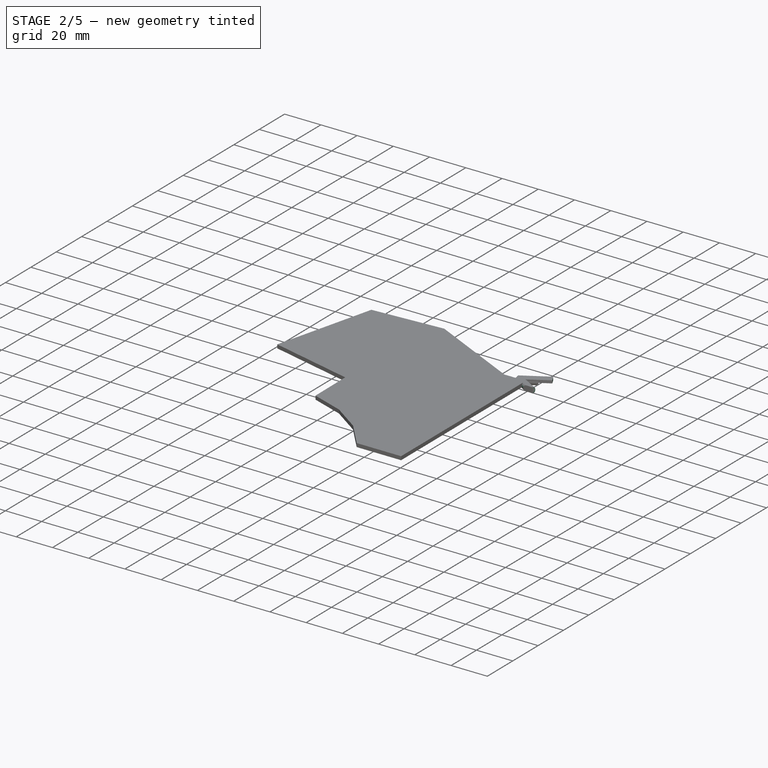
[diagram: stage 2 of 5 — iso view after this stage's code; geometry added in this stage tinted green]
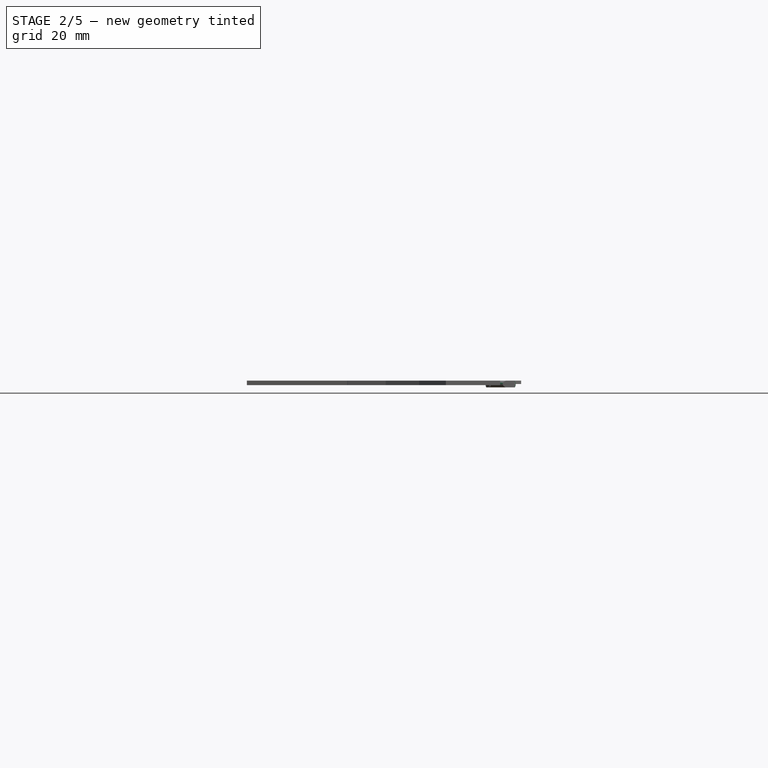
[diagram: stage 2 of 5 — front view after this stage's code; geometry added in this stage tinted green]
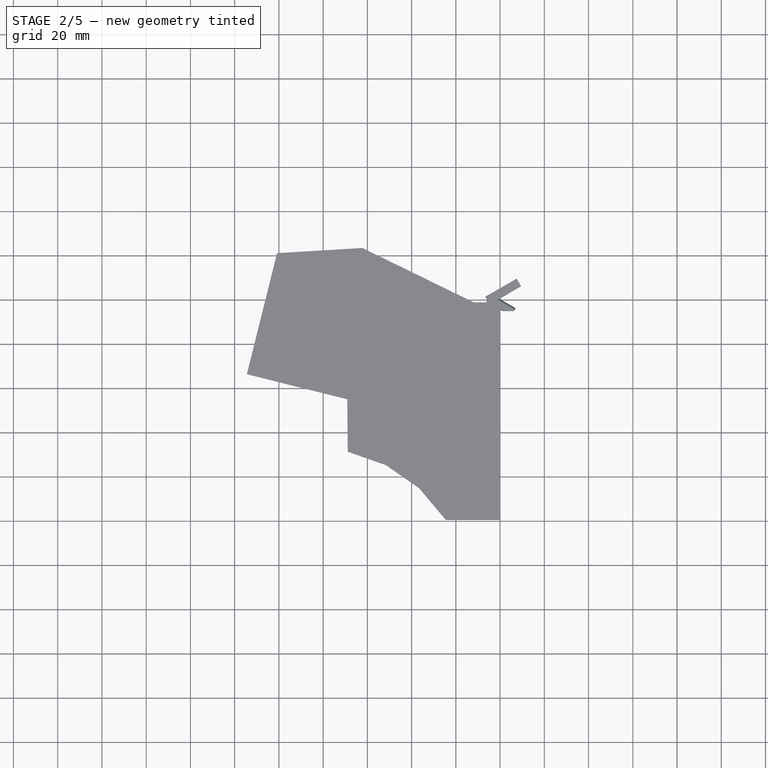
[diagram: stage 2 of 5 — top view after this stage's code; geometry added in this stage tinted green]
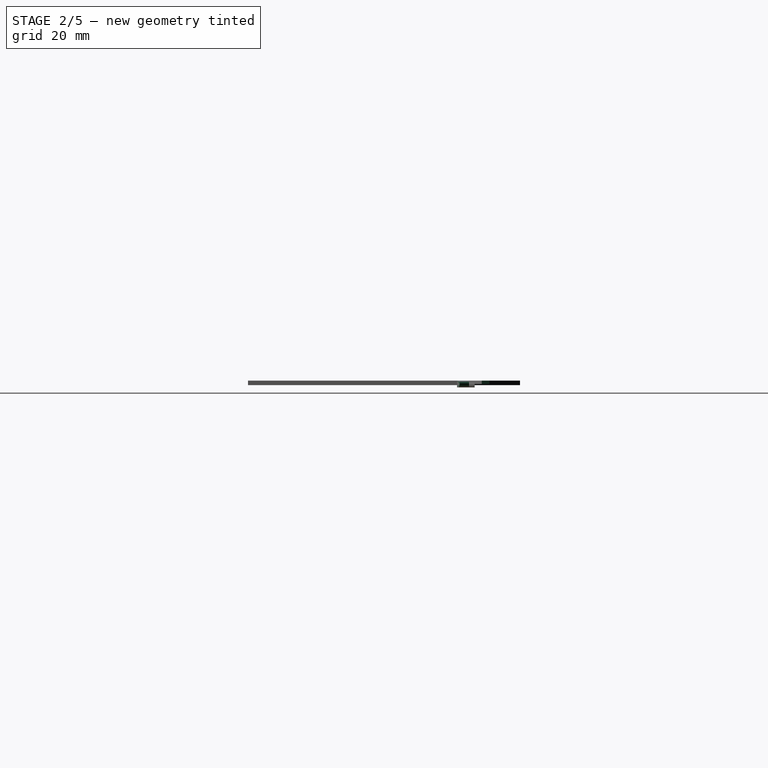
[diagram: stage 2 of 5 — right view after this stage's code; geometry added in this stage tinted green]
FEATURE [PartDesign::Pad] Pad002
  Length = 1.5
  Length2 = 100
  Profile = -> Sketch002
  Reversed = true
  Type = 0
FEATURE [App::MeasureDistance] Distance  label="Distance: 7,00 mm"
  Distance = 7
  P1 = (0,-40.8557,-4.5)
  P2 = (0,-40.8557,2.5)
FEATURE [App::MeasureDistance] Distance001  label="Distance: 3,00 mm"
  Distance = 2.99909
  P1 = (0,-36.8557,-0.000914023)
  P2 = (0,-36.8557,-3)
FEATURE [PartDesign::Pad] Pad003
  Length = 1.5
  Length2 = 100
  Profile = -> Sketch001
  Reversed = true
  Type = 0
FEATURE [Sketcher::SketchObject] Sketch005  label="pro micro usb"
  AttachmentOffset = pos=(0,0,-1.5) rot=(0,0,1;0rad)
  ExternalGeometry = -> [Pad003]
  MapMode = 5
  Placement = pos=(0,0,-1.5) rot=(0,0,1;0rad)
  Support = -> [XY_Plane003]
  sketch-geometry (6):
    g0: LineSegment StartX=-3.75 StartY=8.25 StartZ=0 EndX=3.75 EndY=8.25 EndZ=0
    g1: LineSegment StartX=3.75 StartY=8.25 StartZ=0 EndX=3.75 EndY=2.75 EndZ=0
    g2: LineSegment StartX=3.75 StartY=2.75 StartZ=0 EndX=-3.75 EndY=2.75 EndZ=0
    g3: LineSegment StartX=-3.75 StartY=2.75 StartZ=0 EndX=-3.75 EndY=8.25 EndZ=0
    g4: LineSegment [constr] StartX=-9 StartY=6.75 StartZ=0 EndX=-3.75 EndY=8.25 EndZ=0
    g5: LineSegment [constr] StartX=3.75 StartY=8.25 StartZ=0 EndX=9 EndY=6.75 EndZ=0
  constraints (16):
    c: Coincident(g0,g1)
    c: Coincident(g1,g2)
    c: Coincident(g2,g3)
    c: Coincident(g3,g0)
    c: Horizontal(g0)
    c: Horizontal(g2)
    c: Vertical(g1)
    c: Vertical(g3)
    c: Distance(g0) = 7.5
    c: Distance(g1) = 5.5
    c: Distance(g0,g-4) = 1.5
    c: Coincident(g4,g-4)
    c: Coincident(g4,g0)
    c: Coincident(g5,g0)
    c: Coincident(g5,g-5)
    c: Equal(g5,g4)
FEATURE [PartDesign::Pad] Pad004
  BaseFeature = -> Pad003
  Length = 2.5
  Length2 = 100
  Profile = -> Sketch005
  Reversed = true
  Type = 0
FEATURE [App::MeasureDistance] Distance002  label="Distance: 1,40 mm"
  Distance = 1.40004
  P1 = (-61.2035,6.64821,1.1)
  P2 = (-61.1938,6.64479,2.5)
FEATURE [Sketcher::SketchObject] Sketch007  label="pro micro usb space"
  ExternalGeometry = -> [Sketch005,Sketch001]
  MapMode = 5
  Support = -> [XY_Plane003]
  sketch-geometry (8):
    g0: LineSegment StartX=-9.5 StartY=23.25 StartZ=0 EndX=9.5 EndY=23.25 EndZ=0
    g1: LineSegment StartX=9.5 StartY=23.25 StartZ=0 EndX=9.5 EndY=-27.25 EndZ=0
    g2: LineSegment StartX=9.5 StartY=-27.25 StartZ=0 EndX=-9.5 EndY=-27.25 EndZ=0
    g3: LineSegment StartX=-9.5 StartY=-27.25 StartZ=0 EndX=-9.5 EndY=23.25 EndZ=0
    g4: LineSegment [constr] StartX=-9 StartY=6.75 StartZ=0 EndX=-9.5 EndY=6.75 EndZ=0
    g5: LineSegment [constr] StartX=9 StartY=6.75 StartZ=0 EndX=9.5 EndY=6.75 EndZ=0
    g6: LineSegment [constr] StartX=9 StartY=-26.75 StartZ=0 EndX=9 EndY=-27.25 EndZ=0
    g7: LineSegment [constr] StartX=3.75 StartY=8.25 StartZ=0 EndX=3.75 EndY=23.25 EndZ=0
  constraints (24):
    c: Coincident(g0,g1)
    c: Coincident(g1,g2)
    c: Coincident(g2,g3)
    c: Coincident(g3,g0)
    c: Horizontal(g0)
    c: Horizontal(g2)
    c: Vertical(g1)
    c: Vertical(g3)
    c: Distance(g-7,g1) = 0.5
    c: Coincident(g4,g-7)
    c: PointOnObject(g4,g3)
    c: Horizontal(g4)
    c: PointOnObject(g5,g1)
    c: Horizontal(g5)
    c: Coincident(g5,g-7)
    c: Coincident(g6,g-5)
    c: PointOnObject(g6,g2)
    c: Vertical(g6)
    c: Equal(g6,g5)
    c: Equal(g5,g4)
    c: Coincident(g7,g-10)
    c: Vertical(g7)
    c: PointOnObject(g7,g0)
    c: Distance(g7) = 15
FEATURE [PartDesign::Body] Body003  label="pro micro"
  Group = -> [Sketch001,Pad003,Sketch005,Pad004,Sketch007]
  Origin = -> Origin003
  Placement = pos=(0,0,1.1) rot=(0,0,1;0rad)
  Tip = -> Pad004
FEATURE [PartDesign::Pocket] Pocket004
  BaseFeature = -> Pad002
  Length = 0.5
  Length2 = 100
  Profile = -> Sketch007
  Type = 0
FEATURE [Sketcher::SketchObject] Sketch008  label="pro micro holder sketch"
  ExternalGeometry = -> [Pad004]
  sketch-geometry (6):
    g0: LineSegment StartX=-12 StartY=7.75 StartZ=0 EndX=-8 EndY=3.75 EndZ=0
    g1: LineSegment StartX=-8 StartY=3.75 StartZ=0 EndX=-8 EndY=-29.75 EndZ=0
    g2: LineSegment StartX=-8 StartY=-29.75 StartZ=0 EndX=-12 EndY=-29.75 EndZ=0
    g3: LineSegment StartX=-12 StartY=-29.75 StartZ=0 EndX=-12 EndY=7.75 EndZ=0
    g4: LineSegment [constr] StartX=-12 StartY=7.75 StartZ=0 EndX=-9 EndY=6.75 EndZ=0
    g5: LineSegment [constr] StartX=-9 StartY=6.75 StartZ=0 EndX=-8 EndY=3.75 EndZ=0
  constraints (16):
    c: Coincident(g0,g1)
    c: Coincident(g1,g2)
    c: Coincident(g2,g3)
    c: Coincident(g3,g0)
    c: Horizontal(g2)
    c: Vertical(g1)
    c: Vertical(g3)
    c: Distance(g-6,g2) = 3
    c: Distance(g-6,g3) = 3
    c: Distance(g-6,g1) = 1
    c: Coincident(g0,g4)
    c: Coincident(g4,g-5)
    c: Coincident(g4,g5)
    c: Coincident(g5,g0)
    c: Equal(g5,g4)
    c: Angle(g3,g0) = 0.785398
FEATURE [App::MeasureDistance] Distance003  label="Distance: 6,00 mm"
  Distance = 5.99939
  P1 = (0,56.5154,-3)
  P2 = (0,62.5148,-2.99997)
FEATURE [Part::Cylinder] Cylinder
  Angle = 360
  AttacherType = Attacher::AttachEngine3D
  Height = 13
  Placement = pos=(6.06218,54.5,-1.5) rot=(-0.377964,0.654654,0.654654;3.86433rad)
  Radius = 2
FEATURE [Part::MultiFuse] Fusion002  label="top cable hole"
  Shapes = -> [Cylinder,Cylinder001]
FEATURE [Part::Box] Box001  label="Cube001"
  AttacherType = Attacher::AttachEngine3D
  Height = 1.5
  Length = 16
  Placement = pos=(-4.33013,58.2,-1.5) rot=(0,0,1;0.523599rad)
  Width = 4
FEATURE [Part::MultiCommon] Common001  label="top cable hole (mid)"
  Shapes = -> [Box002,Fusion002]
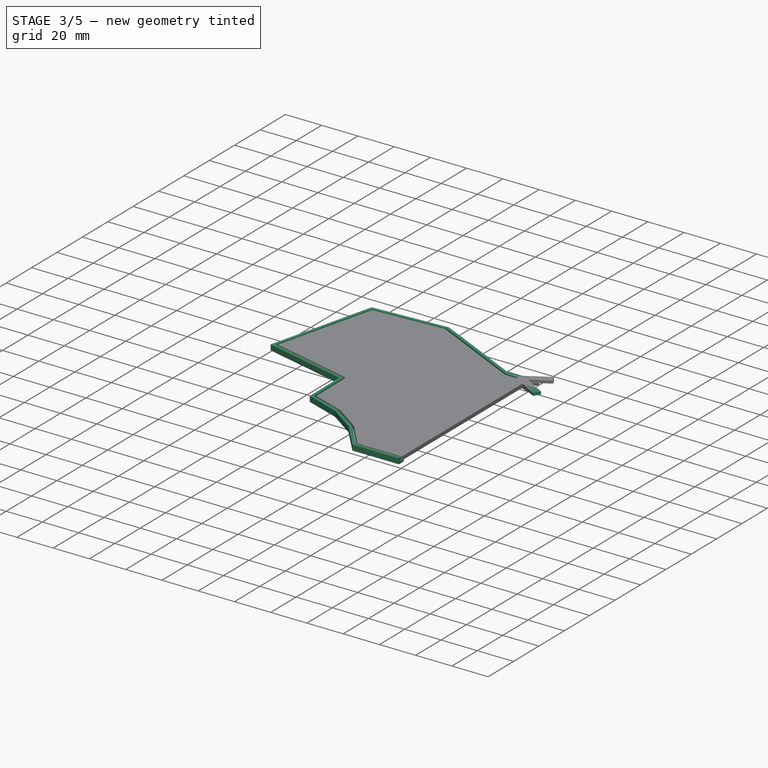
[diagram: stage 3 of 5 — iso view after this stage's code; geometry added in this stage tinted green]
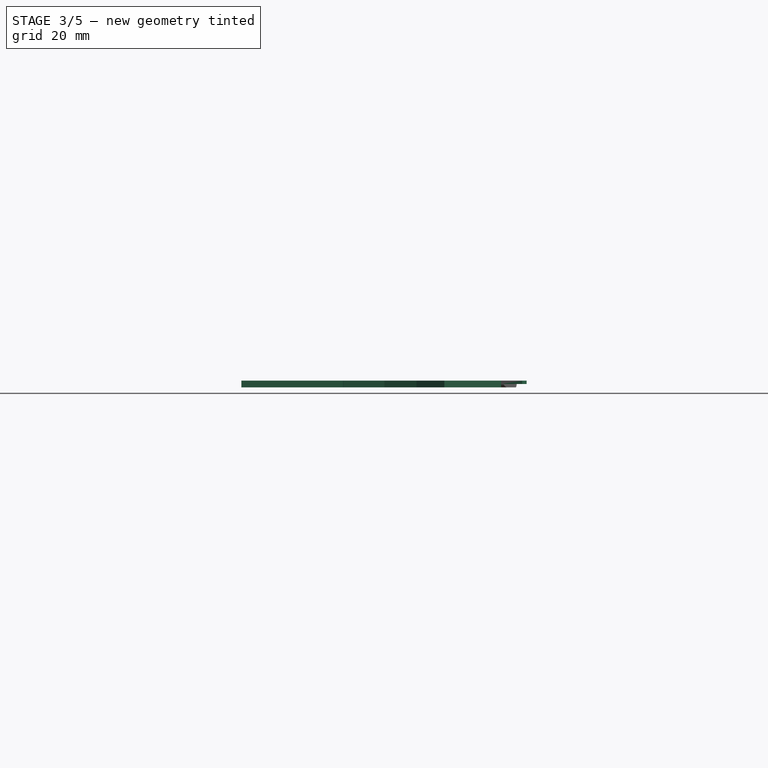
[diagram: stage 3 of 5 — front view after this stage's code; geometry added in this stage tinted green]
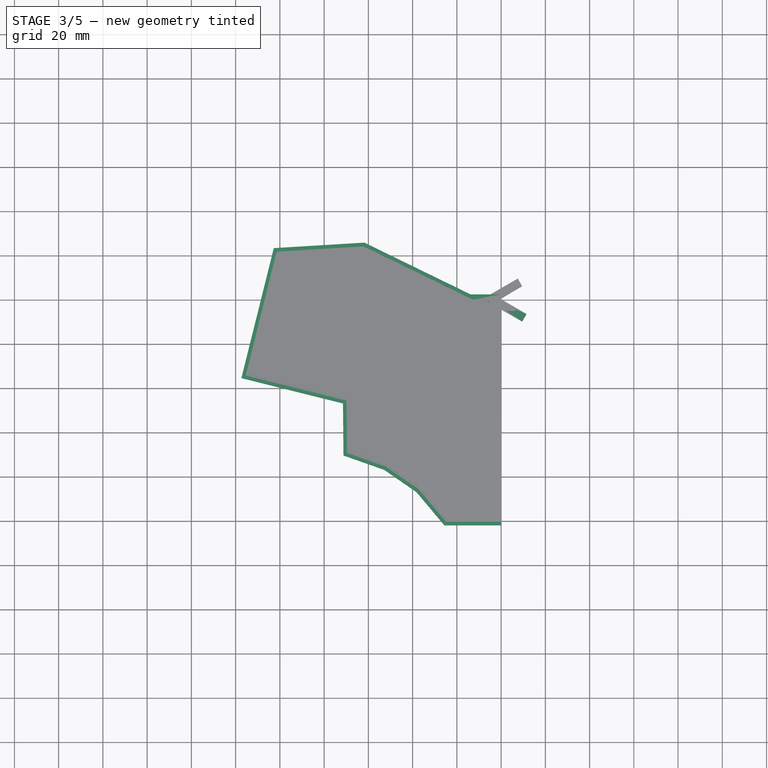
[diagram: stage 3 of 5 — top view after this stage's code; geometry added in this stage tinted green]
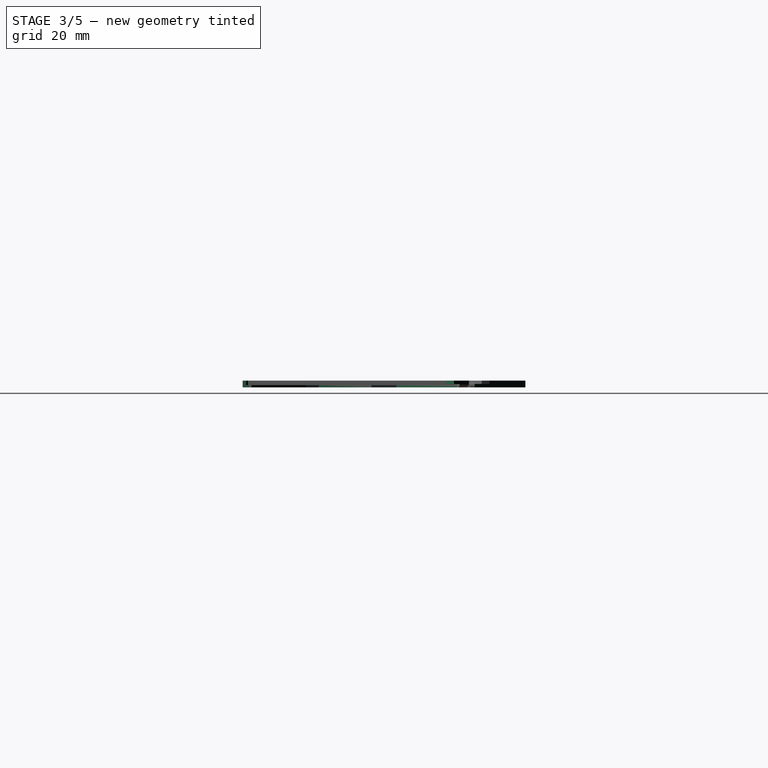
[diagram: stage 3 of 5 — right view after this stage's code; geometry added in this stage tinted green]
FEATURE [Part::Box] Box  label="Cube"
  AttacherType = Attacher::AttachEngine3D
  Height = 1.5
  Length = 16
  Placement = pos=(-4.33013,58.2,-1.5) rot=(0,0,-1;0.523599rad)
  Width = 4
FEATURE [Part::MultiFuse] Fusion003  label="bottom cable hole part"
  Shapes = -> [Box,Box001]
FEATURE [Part::MultiFuse] Fusion004  label="bottom cable hole mid"
  Shapes = -> [Fusion003,Common001]
FEATURE [Sketcher::SketchObject] Sketch006  label="pro micro rail"
  ExternalGeometry = -> [Pad004]
  MapMode = 2
  Support = -> [Pocket001]
  sketch-geometry (8):
    g0: LineSegment StartX=-9.5 StartY=40.25 StartZ=0 EndX=9.5 EndY=40.25 EndZ=0
    g1: LineSegment StartX=9.5 StartY=40.25 StartZ=0 EndX=9.5 EndY=-27.75 EndZ=0
    g2: LineSegment StartX=9.5 StartY=-27.75 StartZ=0 EndX=-9.5 EndY=-27.75 EndZ=0
    g3: LineSegment StartX=-9.5 StartY=-27.75 StartZ=0 EndX=-9.5 EndY=40.25 EndZ=0
    g4: LineSegment [constr] StartX=-9 StartY=6.75 StartZ=0 EndX=-9.5 EndY=6.75 EndZ=0
    g5: LineSegment [constr] StartX=9 StartY=6.75 StartZ=0 EndX=9.5 EndY=6.75 EndZ=0
    g6: LineSegment [constr] StartX=9 StartY=-26.75 StartZ=0 EndX=9 EndY=-27.75 EndZ=0
    g7: LineSegment [constr] StartX=-9 StartY=6.75 StartZ=0 EndX=-9 EndY=40.25 EndZ=0
  constraints (24):
    c: Coincident(g0,g1)
    c: Coincident(g1,g2)
    c: Coincident(g2,g3)
    c: Coincident(g3,g0)
    c: Horizontal(g0)
    c: Horizontal(g2)
    c: Vertical(g1)
    c: Vertical(g3)
    c: Coincident(g4,g-6)
    c: PointOnObject(g4,g3)
    c: Horizontal(g4)
    c: Coincident(g5,g-4)
    c: PointOnObject(g5,g1)
    c: Horizontal(g5)
    c: Equal(g5,g4)
    c: Distance(g5) = 0.5
    c: Coincident(g6,g-5)
    c: PointOnObject(g6,g2)
    c: Vertical(g6)
    c: Coincident(g7,g4)
    c: PointOnObject(g7,g0)
    c: Vertical(g7)
    c: Equal(g7,g-6)
    c: Distance(g6) = 1
FEATURE [PartDesign::Pocket] Pocket003
  BaseFeature = -> Pocket001
  Length = 1.1
  Length2 = 100
  Profile = -> Sketch006
  Reversed = true
  Type = 0
FEATURE [PartDesign::Pad] Pad005
  BaseFeature = -> Pocket003
  Length = 1.5
  Length2 = 100
  Profile = -> Sketch008
  Reversed = true
  Type = 0
FEATURE [PartDesign::Pocket] Pocket005
  BaseFeature = -> Pad005
  Length = 0.6
  Length2 = 100
  Profile = -> Sketch006
  Type = 0
FEATURE [PartDesign::Chamfer] Chamfer
  Base = -> Pocket005 [Edge285]
  BaseFeature = -> Pocket005
  Size = 0.6
FEATURE [Sketcher::SketchObject] Sketch009  label="rim split line outer"
  ExternalGeometry = -> [Sketch004,Pocket002]
  MapMode = 5
  Support = -> [XY_Plane004]
  sketch-geometry (33):
    g0: LineSegment StartX=0 StartY=-40.2663 StartZ=0 EndX=-24.8931 EndY=-40.2663 EndZ=0
    g1: LineSegment StartX=-24.8931 StartY=-40.2663 StartZ=0 EndX=-37.1577 EndY=-25.6704 EndZ=0
    g2: LineSegment StartX=-37.1577 StartY=-25.6704 StartZ=0 EndX=-52.0478 EndY=-15.3614 EndZ=0
    g3: LineSegment StartX=-52.0478 StartY=-15.3614 StartZ=0 EndX=-69.6719 EndY=-9.14406 EndZ=0
    g4: LineSegment StartX=-69.6719 StartY=-9.14406 StartZ=0 EndX=-69.885 EndY=14.5048 EndZ=0
    g5: LineSegment StartX=-69.885 StartY=14.5048 StartZ=0 EndX=-115.456 EndY=25.8668 EndZ=0
    g6: LineSegment StartX=-115.456 StartY=25.8668 StartZ=0 EndX=-101.482 EndY=81.9122 EndZ=0
    g7: LineSegment StartX=-101.482 StartY=81.9122 StartZ=0 EndX=-62.1136 EndY=84.2993 EndZ=0
    g8: LineSegment StartX=-62.1136 StartY=84.2993 StartZ=0 EndX=-12.5291 EndY=60.1154 EndZ=0
    g9: LineSegment StartX=-12.5291 StartY=60.1154 StartZ=0 EndX=0 EndY=60.1154 EndZ=0
    g10: LineSegment StartX=0 StartY=60.1154 StartZ=0 EndX=0 EndY=-40.2663 EndZ=0
    g11: LineSegment [constr] StartX=0 StartY=-37.8663 StartZ=0 EndX=0 EndY=-40.2663 EndZ=0
    g12: LineSegment [constr] StartX=0 StartY=-40.2663 StartZ=0 EndX=0 EndY=-41.8663 EndZ=0
    g13: LineSegment [constr] StartX=-23.775 StartY=-37.8663 StartZ=0 EndX=-24.8931 EndY=-40.2663 EndZ=0
    g14: LineSegment [constr] StartX=-24.8931 StartY=-40.2663 StartZ=0 EndX=-25.6386 EndY=-41.8663 EndZ=0
    g15: LineSegment [constr] StartX=-35.5271 StartY=-23.8802 StartZ=0 EndX=-37.1577 EndY=-25.6704 EndZ=0
    g16: LineSegment [constr] StartX=-37.1577 StartY=-25.6704 StartZ=0 EndX=-38.2447 EndY=-26.8638 EndZ=0
    g17: LineSegment [constr] StartX=-50.9461 StartY=-13.2051 StartZ=0 EndX=-52.0478 EndY=-15.3614 EndZ=0
    g18: LineSegment [constr] StartX=-52.0478 StartY=-15.3614 StartZ=0 EndX=-52.7823 EndY=-16.799 EndZ=0
    g19: LineSegment [constr] StartX=-67.2872 StartY=-7.44038 StartZ=0 EndX=-69.6719 EndY=-9.14406 EndZ=0
    g20: LineSegment [constr] StartX=-69.6719 StartY=-9.14406 StartZ=0 EndX=-71.2618 EndY=-10.2798 EndZ=0
    g21: LineSegment [constr] StartX=-71.4738 StartY=13.2519 StartZ=0 EndX=-69.885 EndY=14.5048 EndZ=0
    g22: LineSegment [constr] StartX=-69.885 StartY=14.5048 StartZ=0 EndX=-67.5019 EndY=16.3841 EndZ=0
    g23: LineSegment [constr] StartX=-117.395 StartY=24.7014 StartZ=0 EndX=-115.456 EndY=25.8668 EndZ=0
    g24: LineSegment [constr] StartX=-115.456 StartY=25.8668 StartZ=0 EndX=-112.546 EndY=27.6149 EndZ=0
    g25: LineSegment [constr] StartX=-102.75 StartY=83.4383 StartZ=0 EndX=-101.482 EndY=81.9122 EndZ=0
    g26: LineSegment [constr] StartX=-101.482 StartY=81.9122 StartZ=0 EndX=-99.5792 EndY=79.6232 EndZ=0
    g27: LineSegment [constr] StartX=-61.7904 StartY=85.9219 StartZ=0 EndX=-62.1136 EndY=84.2993 EndZ=0
    g28: LineSegment [constr] StartX=-62.1136 StartY=84.2993 StartZ=0 EndX=-62.5983 EndY=81.8655 EndZ=0
    g29: LineSegment [constr] StartX=-13.8 StartY=62.5154 StartZ=0 EndX=-12.5291 EndY=60.1154 EndZ=0
    g30: LineSegment [constr] StartX=-12.5291 StartY=60.1154 StartZ=0 EndX=-10.6229 EndY=56.5154 EndZ=0
    g31: LineSegment [constr] StartX=0 StartY=56.5154 StartZ=0 EndX=0 EndY=60.1154 EndZ=0
    g32: LineSegment [constr] StartX=0 StartY=60.1154 StartZ=0 EndX=0 EndY=62.5154 EndZ=0
  constraints (77):
    c: PointOnObject(g0,g-2)
    c: Coincident(g0,g1)
    c: Coincident(g1,g2)
    c: Coincident(g2,g3)
    c: Coincident(g3,g4)
    c: Coincident(g4,g5)
    c: Coincident(g5,g6)
    c: Coincident(g6,g7)
    c: Coincident(g7,g8)
    c: Coincident(g8,g9)
    c: PointOnObject(g9,g-2)
    c: Coincident(g9,g10)
    c: Coincident(g10,g0)
    c: Coincident(g-12,g11)
    c: Coincident(g11,g12)
    c: Coincident(g12,g-22)
    c: Coincident(g-12,g13)
    c: Coincident(g13,g0)
    c: Coincident(g13,g14)
    c: Coincident(g14,g-22)
    c: Coincident(g-11,g15)
    c: Coincident(g15,g1)
    c: Coincident(g15,g16)
    c: Coincident(g16,g-21)
    c: Coincident(g-10,g17)
    c: Coincident(g17,g2)
    c: Coincident(g17,g18)
    c: Coincident(g18,g-20)
    c: Coincident(g-9,g19)
    c: Coincident(g19,g3)
    c: Coincident(g19,g20)
    c: Coincident(g20,g-19)
    c: Coincident(g-18,g21)
    c: Coincident(g21,g4)
    c: Coincident(g21,g22)
    c: Coincident(g22,g-8)
    c: Coincident(g-17,g23)
    c: Coincident(g23,g5)
    c: Coincident(g23,g24)
    c: Coincident(g24,g-7)
    c: Coincident(g-16,g25)
    c: Coincident(g25,g6)
    c: Coincident(g25,g26)
    c: Coincident(g26,g-6)
    c: Coincident(g-14,g27)
    c: Coincident(g27,g7)
    c: Coincident(g27,g28)
    c: Coincident(g28,g-5)
    c: Coincident(g-15,g29)
    c: Coincident(g29,g8)
    c: Coincident(g29,g30)
    c: Coincident(g30,g-4)
    c: Coincident(g-4,g31)
    c: Coincident(g31,g32)
    c: Coincident(g32,g-15)
    c: Parallel(g25,g26)
    c: Parallel(g27,g28)
    c: Parallel(g29,g30)
    c: Parallel(g24,g23)
    c: Coincident(g11,g0)
    c: Parallel(g13,g14)
    c: Coincident(g9,g31)
    c: Parallel(g15,g16)
    c: Parallel(g17,g18)
    c: Parallel(g19,g20)
    c: Parallel(g22,g21)
    c: Parallel(g7,g-5)
    c: Parallel(g8,g-3)
    c: Parallel(g9,g-4)
    c: Parallel(g0,g-22)
    c: Parallel(g1,g-21)
    c: Parallel(g2,g-20)
    c: Parallel(g3,g-19)
    c: Parallel(g4,g-18)
    c: Parallel(g5,g-17)
    c: Parallel(g6,g-16)
    c: Distance(g0,g-22) = 1.6
FEATURE [PartDesign::Body] Body004  label="rim big (whole block)"
  Group = -> [Sketch009,Pad006]
  Origin = -> Origin004
  Placement = pos=(0,0,-2) rot=(0,0,1;0rad)
  Tip = -> Pad006
FEATURE [PartDesign::Pad] Pad006
  Length = 2
  Length2 = 100
  Profile = -> Sketch009
  Type = 0
FEATURE [Part::Cut] Cut  label="outer rim"
  Base = -> Pocket002
  Tool = -> Body004
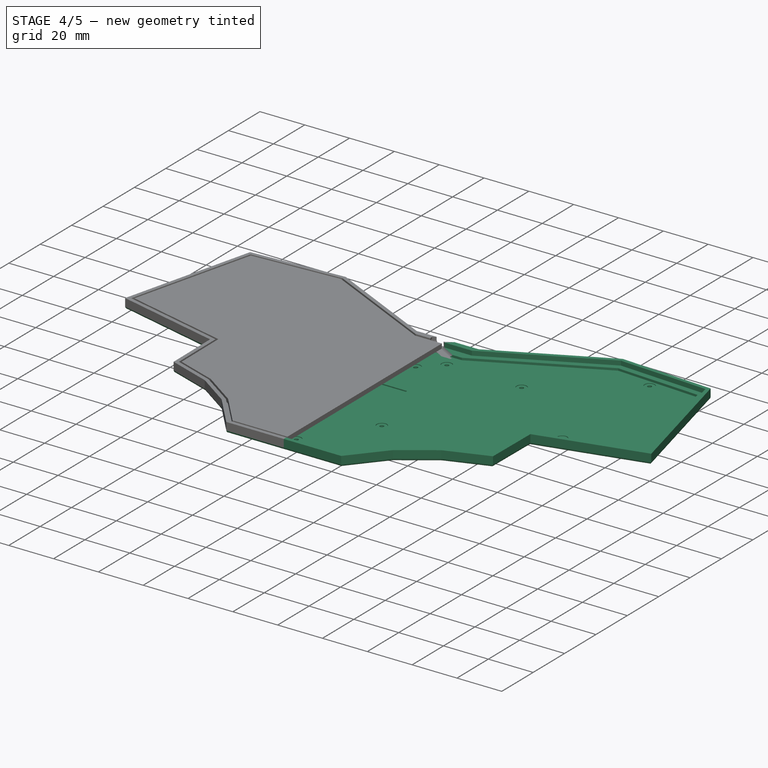
[diagram: stage 4 of 5 — iso view after this stage's code; geometry added in this stage tinted green]
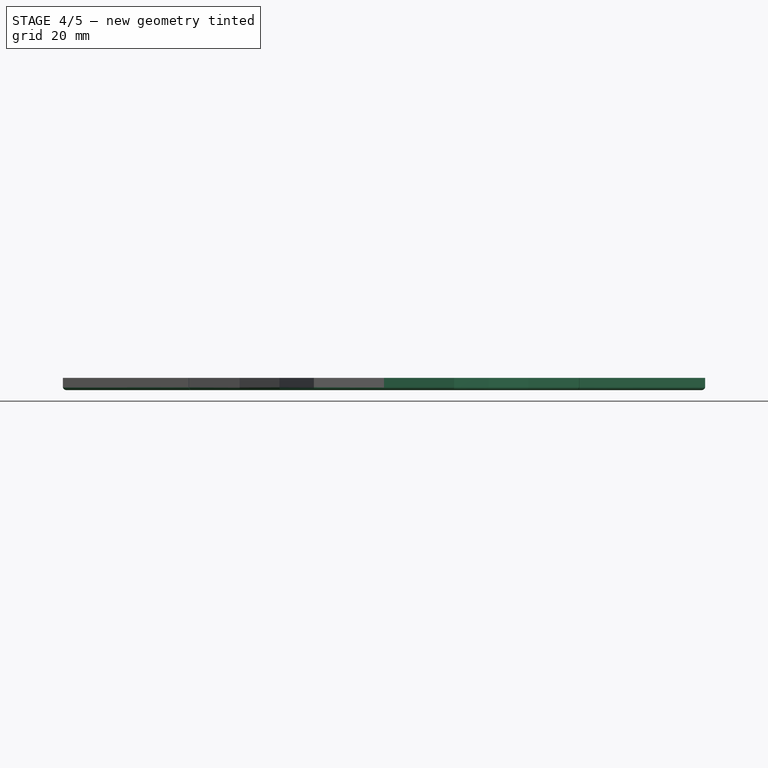
[diagram: stage 4 of 5 — front view after this stage's code; geometry added in this stage tinted green]
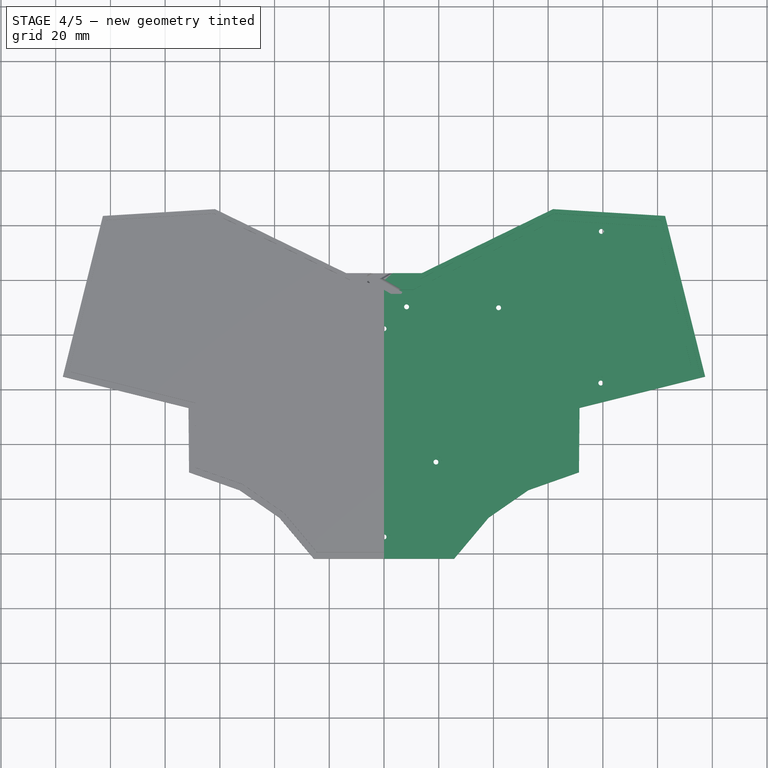
[diagram: stage 4 of 5 — top view after this stage's code; geometry added in this stage tinted green]
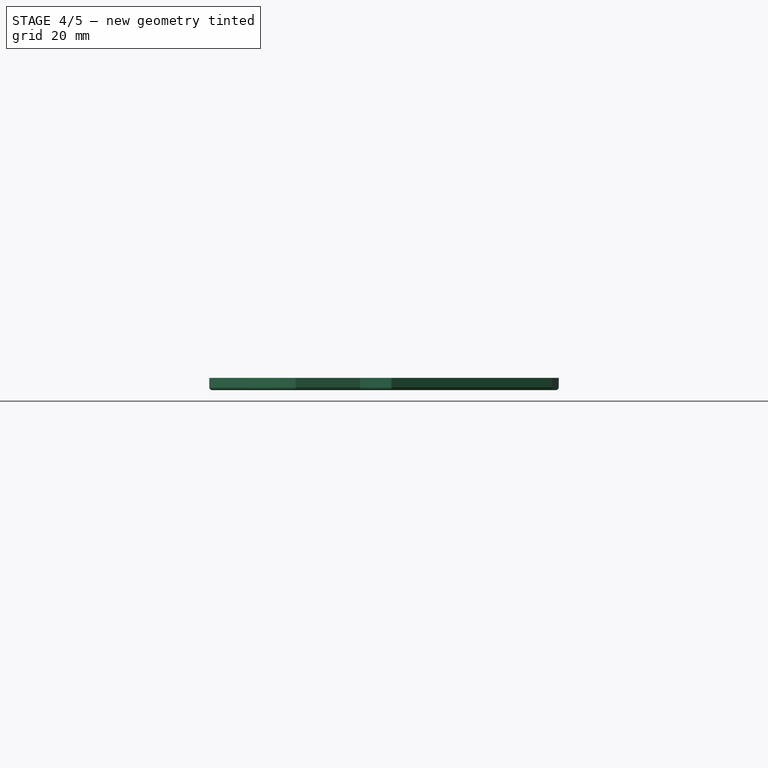
[diagram: stage 4 of 5 — right view after this stage's code; geometry added in this stage tinted green]
FEATURE [Part::MultiFuse] Fusion001  label="bottom part"
  Shapes = -> [Cut,Body002]
FEATURE [Part::Mirroring] Part__Mirroring001  label="bottom part (Mirror #2)"
  Base = (0,0,0)
  Normal = (1,0,0)
  Source = -> Fusion001
FEATURE [Part::FeaturePython] Connect001  label="two-sided bottom"  # WARN: FeaturePython — macro-defined, semantics opaque (R4)
  Objects = -> [Fusion001,Part__Mirroring001]
  Tolerance = 0
FEATURE [Part::Cut] Cut002  label="bottom with cable hole"
  Base = -> Connect001
  Tool = -> Fusion004
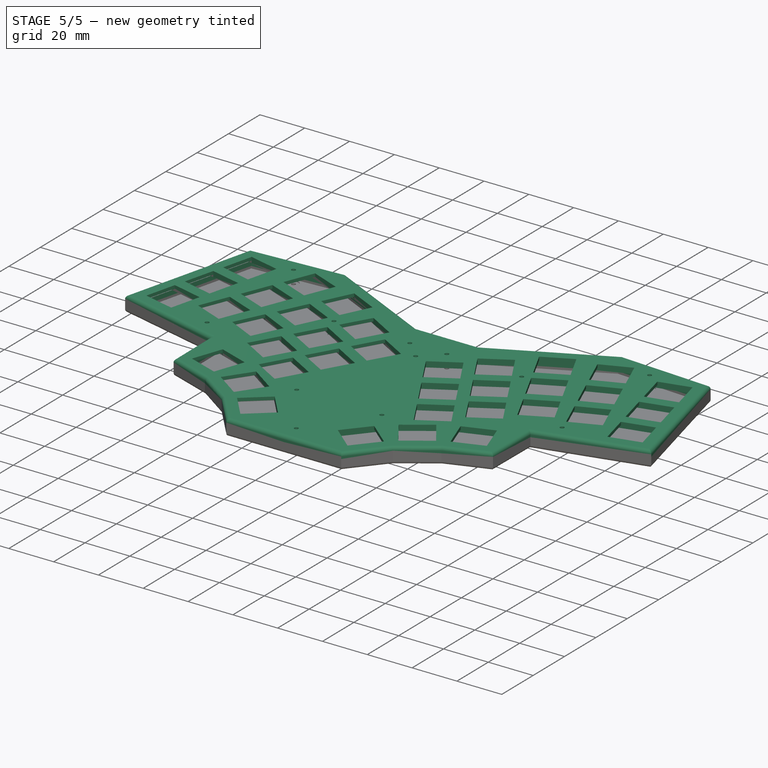
[diagram: stage 5 of 5 — iso view after this stage's code; geometry added in this stage tinted green]
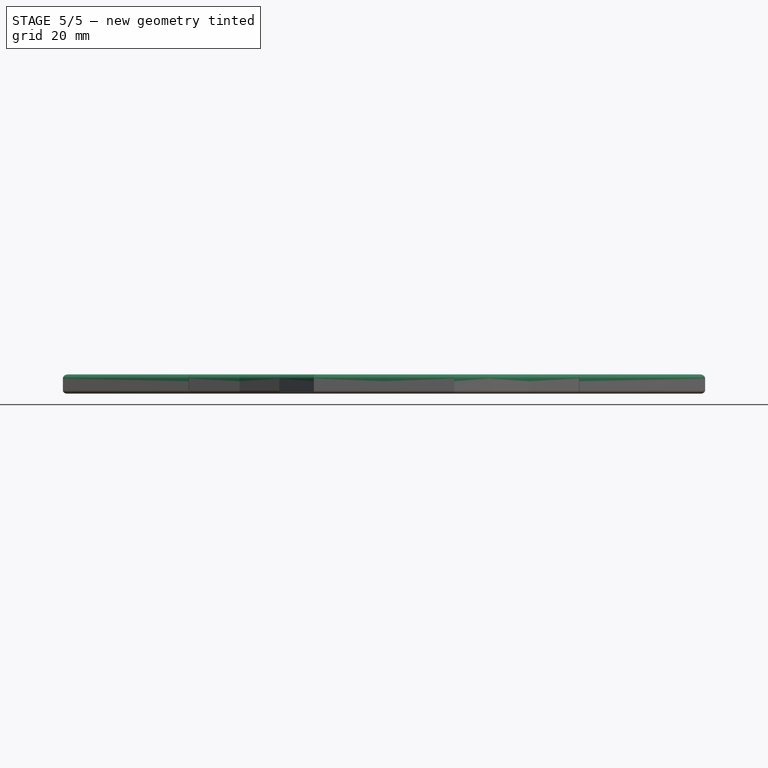
[diagram: stage 5 of 5 — front view after this stage's code; geometry added in this stage tinted green]
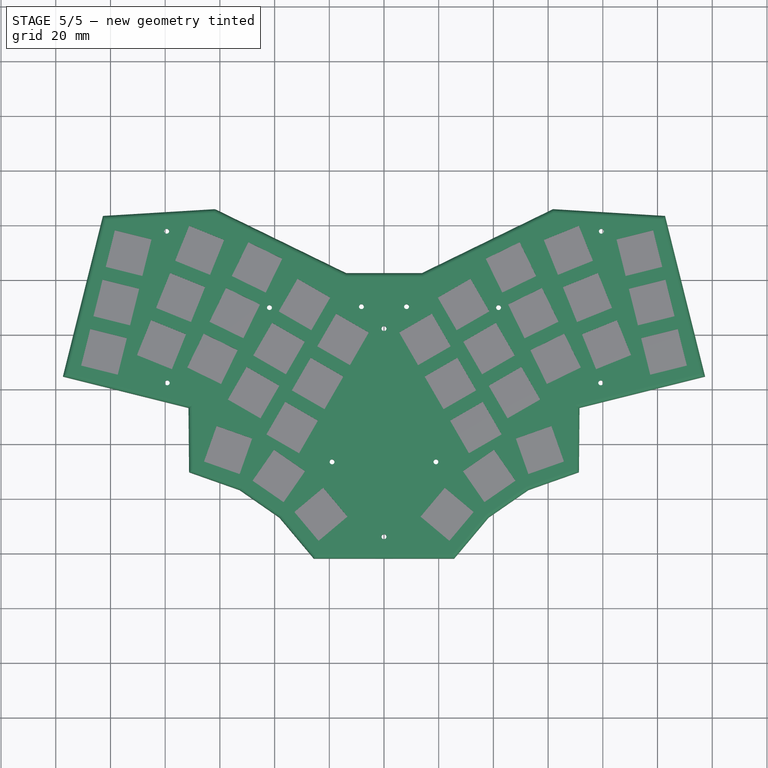
[diagram: stage 5 of 5 — top view after this stage's code; geometry added in this stage tinted green]
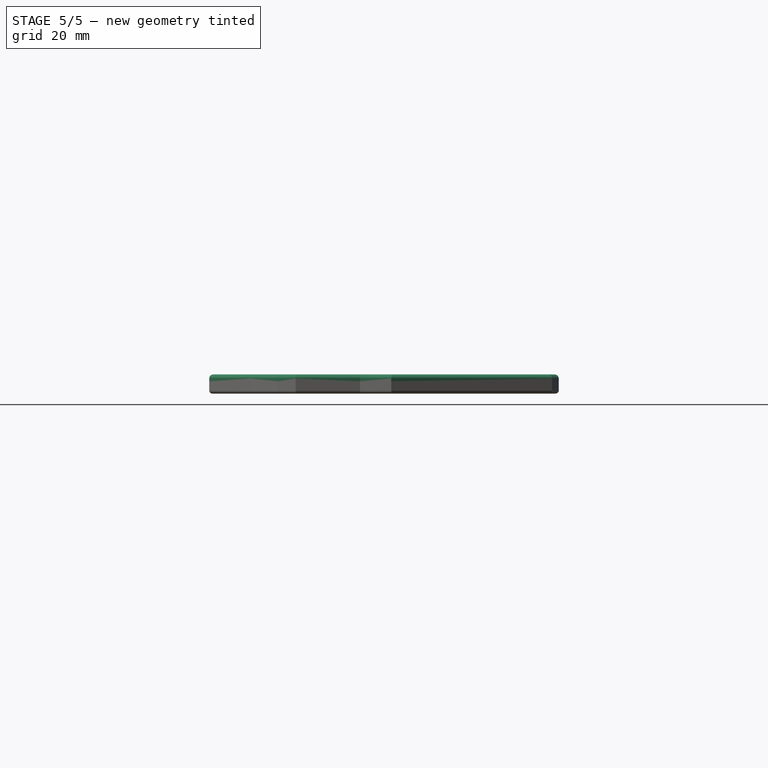
[diagram: stage 5 of 5 — right view after this stage's code; geometry added in this stage tinted green]
FEATURE [Part::MultiCommon] Common  label="inner rim"
  Shapes = -> [Body005,Pocket002]
FEATURE [Part::MultiFuse] Fusion  label="top part"
  Shapes = -> [Common,Body]
FEATURE [Sketcher::SketchObject] Sketch010  label="symmetric standoff pits"
  ExternalGeometry = -> [Sketch,Chamfer,Sketch003,Sketch001,Sketch004,Sketch006]
  sketch-geometry (24):
    g0: Circle CenterX=-79.4571 CenterY=77.8378 CenterZ=0 NormalX=0 NormalY=0 NormalZ=1 AngleXU=0 Radius=2.25
    g1: Circle CenterX=-19 CenterY=-6.48112 CenterZ=0 NormalX=0 NormalY=0 NormalZ=1 AngleXU=0 Radius=2.25
    g2: Circle CenterX=-79.2376 CenterY=22.402 CenterZ=0 NormalX=0 NormalY=0 NormalZ=1 AngleXU=0 Radius=2.25
    g3: Circle CenterX=-41.8819 CenterY=49.9263 CenterZ=0 NormalX=0 NormalY=0 NormalZ=1 AngleXU=0 Radius=2.25
    g4: LineSegment [constr] StartX=-41.4419 StartY=54.524 StartZ=0 EndX=-41.8819 EndY=49.9263 EndZ=0
    g5: LineSegment [constr] StartX=-41.8819 StartY=49.9263 StartZ=0 EndX=-42.6416 EndY=45.3704 EndZ=0
    g6: LineSegment [constr] StartX=-43.5461 StartY=50.2098 StartZ=0 EndX=-41.8819 EndY=49.9263 EndZ=0
    g7: LineSegment [constr] StartX=-41.8819 StartY=49.9263 StartZ=0 EndX=-40.2416 EndY=49.5273 EndZ=0
    g8: LineSegment [constr] StartX=-79.2376 StartY=22.402 StartZ=0 EndX=-81.4876 EndY=22.402 EndZ=0
    g9: LineSegment [constr] StartX=-79.4571 StartY=77.8378 StartZ=0 EndX=-77.2071 EndY=77.8378 EndZ=0
    g10: LineSegment [constr] StartX=-41.8819 StartY=49.9263 StartZ=0 EndX=-39.6319 EndY=49.9263 EndZ=0
    g11: LineSegment [constr] StartX=-19 StartY=-6.48112 StartZ=0 EndX=-16.75 EndY=-6.48112 EndZ=0
    g12: Circle CenterX=-8.25 CenterY=50.2654 CenterZ=0 NormalX=0 NormalY=0 NormalZ=1 AngleXU=0 Radius=2.25
    g13: Circle CenterX=0 CenterY=-33.8663 CenterZ=0 NormalX=0 NormalY=0 NormalZ=1 AngleXU=0 Radius=2.25
    g14: LineSegment [constr] StartX=-8.25 StartY=50.2654 StartZ=0 EndX=-6 EndY=50.2654 EndZ=0
    g15: LineSegment [constr] StartX=0 StartY=-33.8663 StartZ=0 EndX=2.25 EndY=-33.8663 EndZ=0
    g16: LineSegment [constr] StartX=0 StartY=-33.8663 StartZ=0 EndX=0 EndY=-37.8663 EndZ=0
    g17: LineSegment [constr] StartX=-6 StartY=50.2654 StartZ=0 EndX=0 EndY=50.2654 EndZ=0
    g18: Circle CenterX=0 CenterY=42.25 CenterZ=0 NormalX=0 NormalY=0 NormalZ=1 AngleXU=0 Radius=2.25
    g19: LineSegment [constr] StartX=0 StartY=42.25 StartZ=0 EndX=2.25 EndY=42.25 EndZ=0
    g20: LineSegment [constr] StartX=0 StartY=42.25 StartZ=0 EndX=0 EndY=40.25 EndZ=0
    g21: LineSegment [constr] StartX=-6.63623 StartY=48.6975 StartZ=0 EndX=-1.61377 EndY=43.8179 EndZ=0
    g22: LineSegment [constr] StartX=-5.55035 StartY=40.8144 StartZ=0 EndX=-2.17831 EndY=41.6866 EndZ=0
    g23: LineSegment [constr] StartX=-8.25 StartY=52.5154 StartZ=0 EndX=-8.25 EndY=56.5154 EndZ=0
  constraints (71):
    c: Diameter(g0) = 4.5
    c: Distance(g-86,g0) = 5
    c: Distance(g-80,g2) = 12
    c: Distance(g1,g-123) = 10
    c: Distance(g1,g-117) = 10
    c: Distance(g0,g-125) = 3
    c: Distance(g2,g-129) = 3
    c: Coincident(g-90,g4)
    c: Coincident(g4,g3)
    c: Coincident(g4,g5)
    c: Coincident(g5,g-99)
    c: Equal(g4,g5)
    c: Coincident(g-98,g6)
    c: Coincident(g6,g3)
    c: Coincident(g6,g7)
    c: Coincident(g7,g-91)
    c: Equal(g7,g6)
    c: Coincident(g8,g2)
    c: PointOnObject(g8,g2)
    c: Coincident(g9,g0)
    c: PointOnObject(g9,g0)
    c: Coincident(g10,g3)
    c: PointOnObject(g10,g3)
    c: Coincident(g11,g1)
    c: PointOnObject(g11,g1)
    c: Equal(g10,g9)
    c: Equal(g9,g8)
    c: Equal(g8,g11)
    c: Horizontal(g8)
    c: Horizontal(g9)
    c: Horizontal(g10)
    c: Horizontal(g11)
    c: Coincident(g14,g12)
    c: PointOnObject(g14,g12)
    c: Horizontal(g14)
    c: Coincident(g15,g13)
    c: PointOnObject(g15,g13)
    c: Horizontal(g15)
    c: Equal(g15,g14)
    c: Equal(g14,g10)
    c: PointOnObject(g13,g-2)
    c: Coincident(g16,g13)
    c: Coincident(g16,g-134)
    c: Distance(g16) = 4
    c: Coincident(g17,g14)
    c: PointOnObject(g17,g-2)
    c: Horizontal(g17)
    c: Distance(g17) = 6
    c: PointOnObject(g18,g-2)
    c: Coincident(g19,g18)
    c: PointOnObject(g19,g18)
    c: Horizontal(g19)
    c: Equal(g19,g14)
    c: Coincident(g20,g18)
    c: PointOnObject(g20,g-135)
    c: Vertical(g20)
    c: Distance(g20) = 2
    c: PointOnObject(g21,g12)
    c: PointOnObject(g21,g18)
    c: Perpendicular(g12,g21)
    c: Perpendicular(g18,g21)
    c: Distance(g21) = 7.00258
    c: Coincident(g22,g-35)
    c: PointOnObject(g22,g18)
    c: Perpendicular(g18,g22)
    c: Distance(g22) = 3.48302
    c: PointOnObject(g23,g12)
    c: PointOnObject(g23,g-128)
    c: Vertical(g23)
    c: Perpendicular(g12,g23)
    c: Distance(g23) = 4
FEATURE [Sketcher::SketchObject] Sketch011  label="symmetric standoff screw holes"
  ExternalGeometry = -> [Sketch010]
  sketch-geometry (14):
    g0: Circle CenterX=-79.4571 CenterY=77.8378 CenterZ=0 NormalX=0 NormalY=0 NormalZ=1 AngleXU=0 Radius=0.9
    g1: Circle CenterX=-41.8819 CenterY=49.9263 CenterZ=0 NormalX=0 NormalY=0 NormalZ=1 AngleXU=0 Radius=0.9
    g2: Circle CenterX=-79.2376 CenterY=22.402 CenterZ=0 NormalX=0 NormalY=0 NormalZ=1 AngleXU=0 Radius=0.9
    g3: Circle CenterX=-19 CenterY=-6.48112 CenterZ=0 NormalX=0 NormalY=0 NormalZ=1 AngleXU=0 Radius=0.9
    g4: LineSegment [constr] StartX=-79.4571 StartY=77.8378 StartZ=0 EndX=-78.5571 EndY=77.8378 EndZ=0
    g5: LineSegment [constr] StartX=-41.8819 StartY=49.9263 StartZ=0 EndX=-40.9819 EndY=49.9263 EndZ=0
    g6: LineSegment [constr] StartX=-79.2376 StartY=22.402 StartZ=0 EndX=-80.1376 EndY=22.402 EndZ=0
    g7: LineSegment [constr] StartX=-19 StartY=-6.48112 StartZ=0 EndX=-18.1 EndY=-6.48112 EndZ=0
    g8: Circle CenterX=-8.25 CenterY=50.2654 CenterZ=0 NormalX=0 NormalY=0 NormalZ=1 AngleXU=0 Radius=0.9
    g9: Circle CenterX=0 CenterY=-33.8663 CenterZ=0 NormalX=0 NormalY=0 NormalZ=1 AngleXU=0 Radius=0.9
    g10: LineSegment [constr] StartX=-8.25 StartY=50.2654 StartZ=0 EndX=-7.35 EndY=50.2654 EndZ=0
    g11: LineSegment [constr] StartX=0 StartY=-33.8663 StartZ=0 EndX=0.9 EndY=-33.8663 EndZ=0
    g12: Circle CenterX=0 CenterY=42.25 CenterZ=0 NormalX=0 NormalY=0 NormalZ=1 AngleXU=0 Radius=0.9
    g13: LineSegment [constr] StartX=0 StartY=42.25 StartZ=0 EndX=0.9 EndY=42.25 EndZ=0
  constraints (36):
    c: Diameter(g0) = 1.8
    c: Coincident(g4,g0)
    c: PointOnObject(g4,g0)
    c: Horizontal(g4)
    c: Coincident(g5,g1)
    c: PointOnObject(g5,g1)
    c: Horizontal(g5)
    c: Coincident(g6,g2)
    c: PointOnObject(g6,g2)
    c: Horizontal(g6)
    c: Coincident(g7,g3)
    c: PointOnObject(g7,g3)
    c: Horizontal(g7)
    c: Coincident(g-6,g0)
    c: Coincident(g1,g-3)
    c: Coincident(g3,g-5)
    c: Coincident(g-4,g2)
    c: Equal(g6,g7)
    c: Equal(g7,g5)
    c: Equal(g5,g4)
    c: Coincident(g9,g-8)
    c: Coincident(g-7,g8)
    c: Coincident(g10,g8)
    c: PointOnObject(g10,g8)
    c: Horizontal(g10)
    c: Coincident(g11,g9)
    c: PointOnObject(g11,g9)
    c: Horizontal(g11)
    c: Equal(g11,g10)
    c: Equal(g10,g5)
    c: Coincident(g12,g-9)
    c: Coincident(g13,g12)
    c: PointOnObject(g13,g12)
    c: Horizontal(g13)
    c: Equal(g13,g10)
    c: Distance(g10) = 0.9
FEATURE [PartDesign::Pocket] Pocket006
  BaseFeature = -> Chamfer
  Length = 5
  Length2 = 100
  Midplane = true
  Profile = -> Sketch011
  Type = 0
FEATURE [PartDesign::Pocket] Pocket007
  BaseFeature = -> Pocket004
  Length = 5
  Length2 = 100
  Midplane = true
  Profile = -> Sketch011
  Type = 1
FEATURE [PartDesign::Pocket] Pocket008
  BaseFeature = -> Pocket007
  Length = 0.3
  Length2 = 100
  Profile = -> Sketch010
  Type = 0
FEATURE [PartDesign::Pocket] Pocket009
  BaseFeature = -> Pocket006
  Length = 0.7
  Length2 = 100
  Profile = -> Sketch010
  Reversed = true
  Type = 0
FEATURE [Part::Mirroring] Part__Mirroring  label="top part (Mirror #1)"
  Base = (0,0,0)
  Normal = (1,0,0)
  Source = -> Fusion
FEATURE [Part::FeaturePython] Connect  label="two-sided top"  # WARN: FeaturePython — macro-defined, semantics opaque (R4)
  Objects = -> [Fusion,Part__Mirroring]
  Tolerance = 0
FEATURE [Part::Cut] Cut001  label="top wil cable hole"
  Base = -> Connect
  Tool = -> Common001
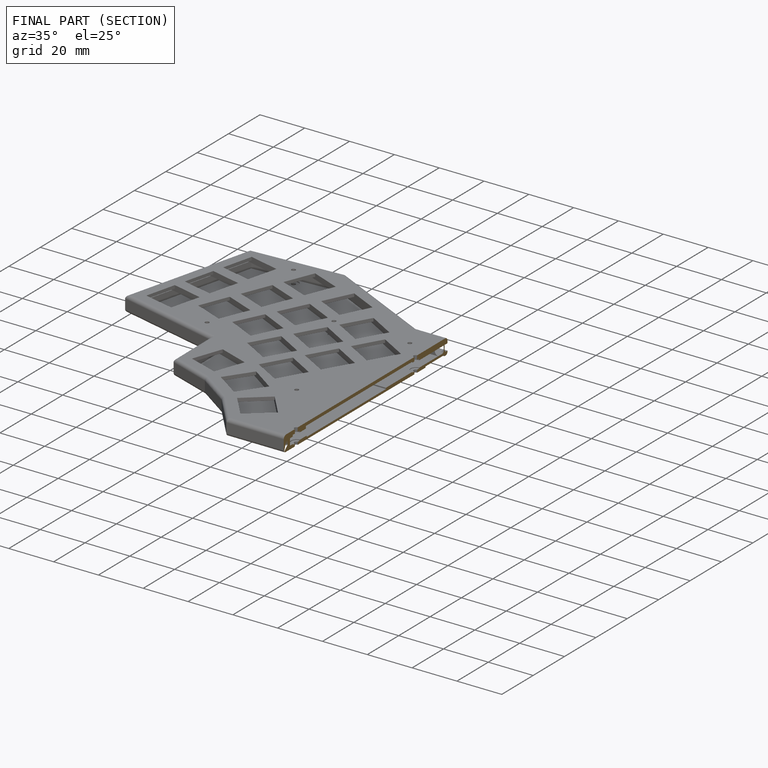
[diagram: finished part — half-section view (interior)]
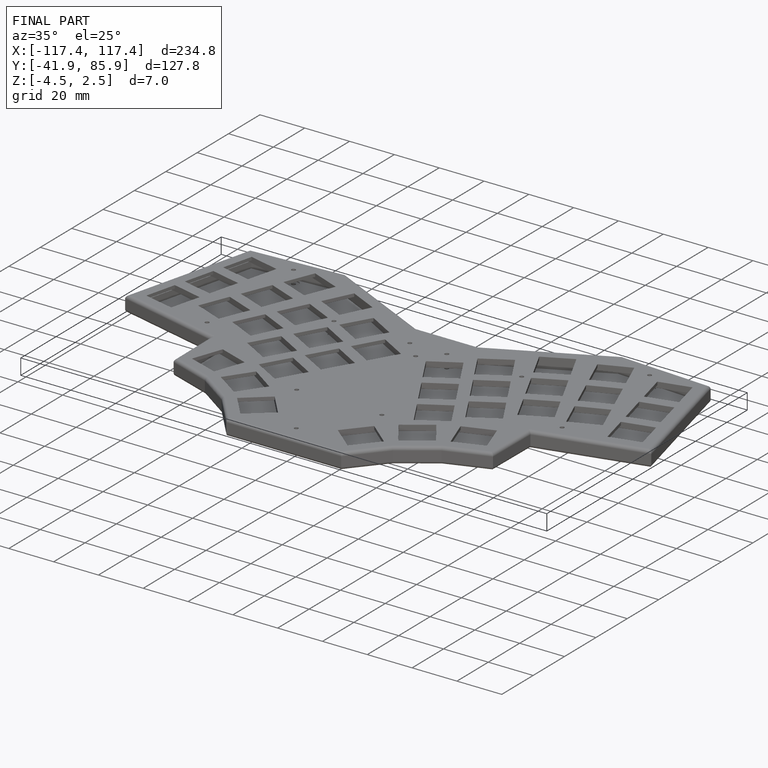
[diagram: finished part — iso view with bounding-box wireframe]
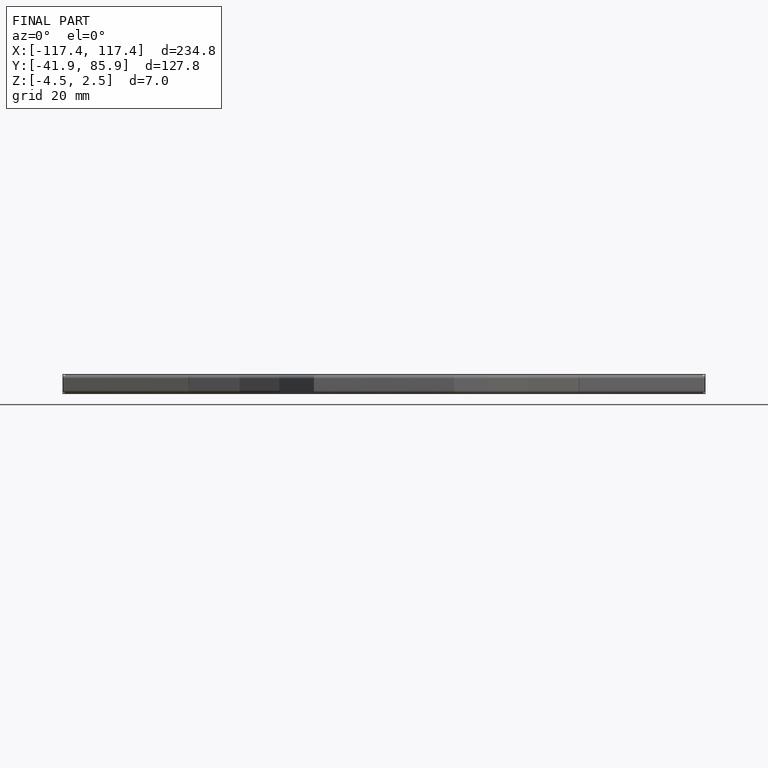
[diagram: finished part — front view with bounding-box wireframe]
